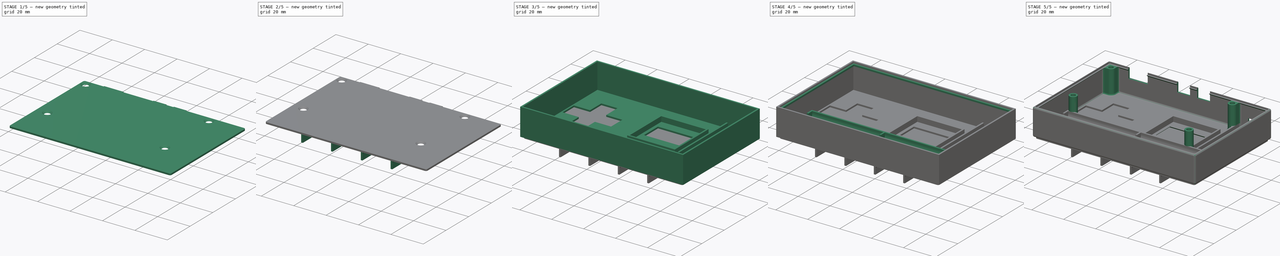
[diagram: build sequence overview — one tinted view per stage of 5, left to right]
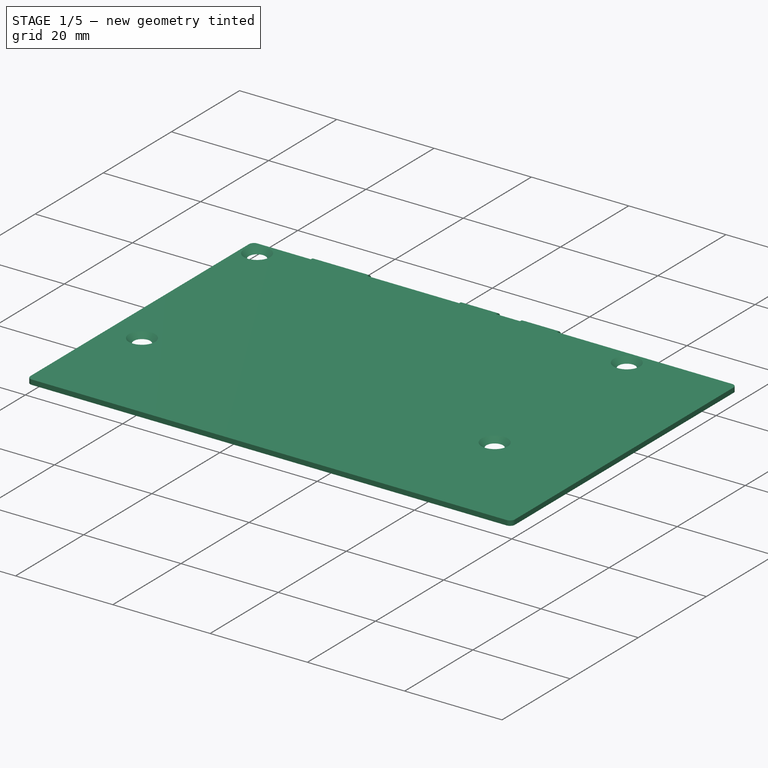
[diagram: stage 1 of 5 — iso view after this stage's code; geometry added in this stage tinted green]
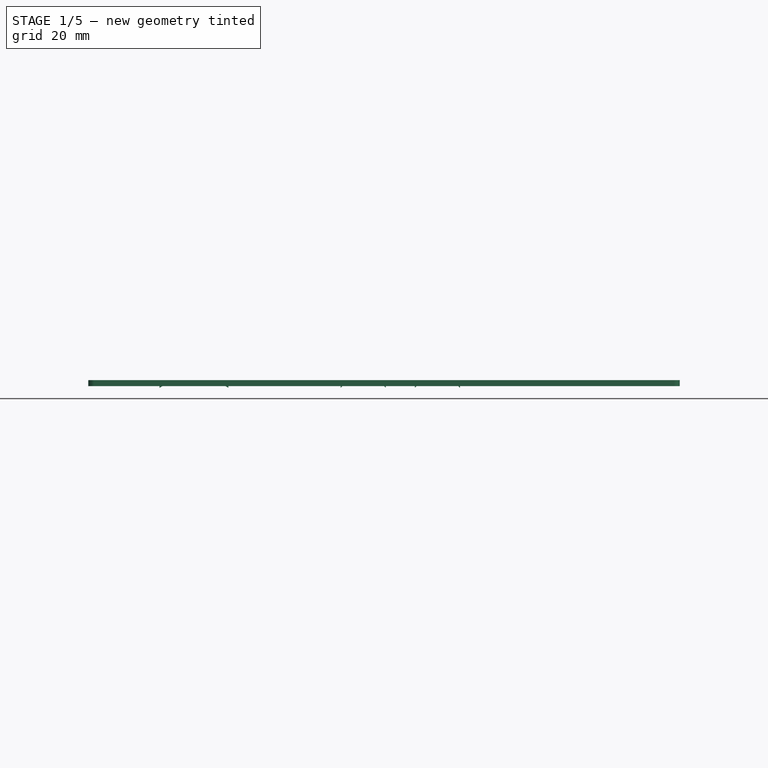
[diagram: stage 1 of 5 — front view after this stage's code; geometry added in this stage tinted green]
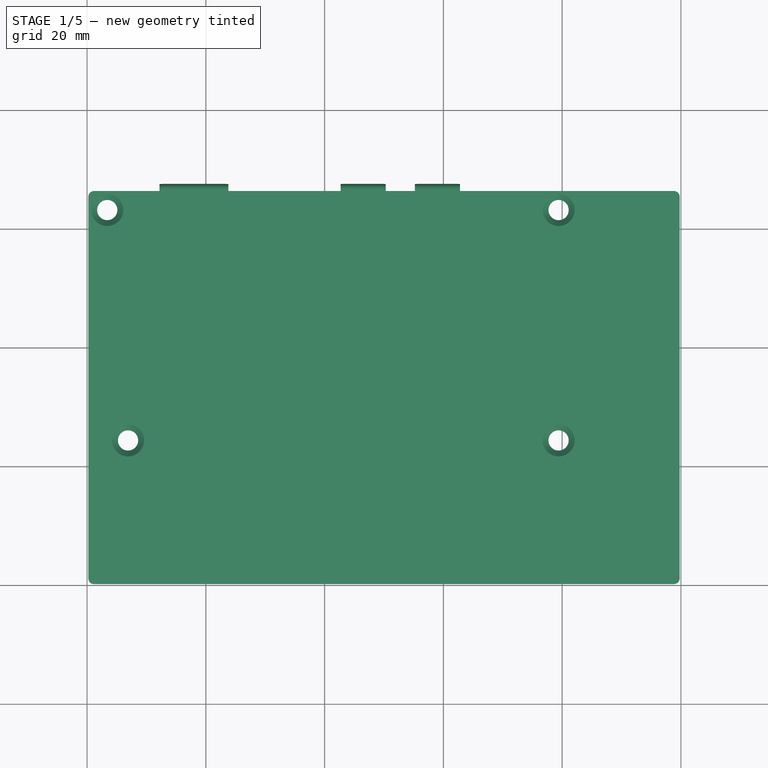
[diagram: stage 1 of 5 — top view after this stage's code; geometry added in this stage tinted green]
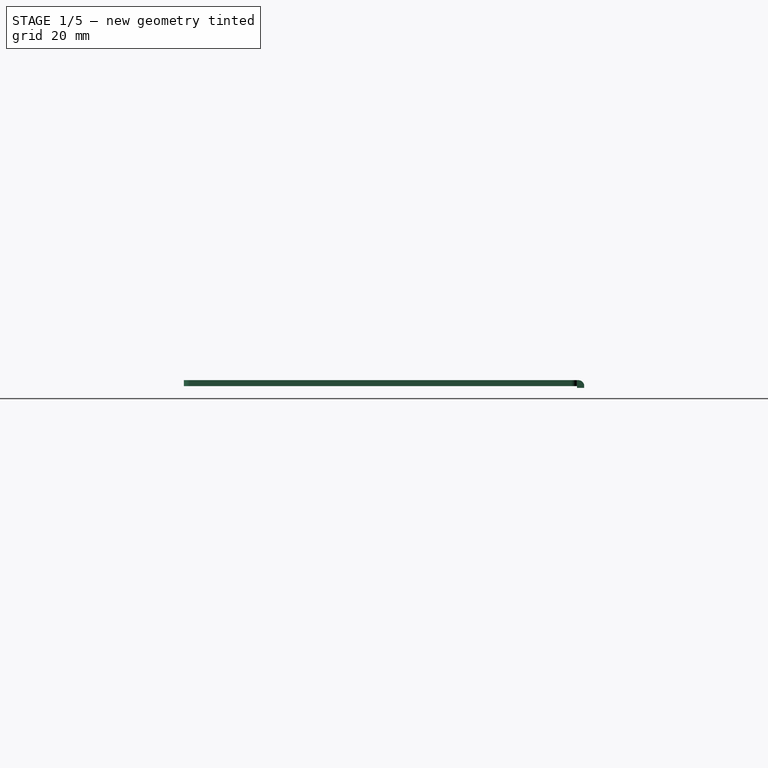
[diagram: stage 1 of 5 — right view after this stage's code; geometry added in this stage tinted green]
FCSTD DOCUMENT  (FreeCAD 0.17R13544 (Git))
Label: case_2
License: All rights reserved
LicenseURL: http://en.wikipedia.org/wiki/All_rights_reserved
objects: Sketcher::SketchObject×15, PartDesign::Pad×10, PartDesign::Fillet×4, PartDesign::Pocket×3, Spreadsheet::Sheet×2, PartDesign::Plane×2, PartDesign::Body×2, PartDesign::LinearPattern×1, PartDesign::Hole×1, PartDesign::Chamfer×1
note: 53 computed .brp shape members not serialized (recipe doc carries the construction recipe); baked Part::Feature solids carry a one-line shape summary decoded from their .brp

FEATURE [Sketcher::SketchObject] Sketch006
  MapMode = 5
  Placement = pos=(0,66.6,0) rot=(1,0,0;1.5708rad)
  Support = -> [Pocket]
  expr: Constraints[35] = c.ard_depth - v.tol
  expr: Constraints[34] = (c.ard_width + v.tol * 2 - 8) / 2
  expr: Constraints[33] = v.width
  expr: Constraints[32] = v.depth
  expr: Constraints[31] = v.wt
  sketch-geometry (24):
    g0: LineSegment StartX=86.9 StartY=8.2 StartZ=0 EndX=94.9 EndY=8.2 EndZ=0
    g1: LineSegment StartX=94.9 StartY=8.2 StartZ=0 EndX=94.9 EndY=5 EndZ=0
    g2: LineSegment StartX=94.9 StartY=5 StartZ=0 EndX=94.5 EndY=5 EndZ=0
    g3: LineSegment StartX=94.5 StartY=5 StartZ=0 EndX=94.5 EndY=4 EndZ=0
    g4: LineSegment StartX=94.5 StartY=4 StartZ=0 EndX=87.3 EndY=4 EndZ=0
    g5: LineSegment StartX=87.3 StartY=4 StartZ=0 EndX=87.3 EndY=5 EndZ=0
    g6: LineSegment StartX=87.3 StartY=5 StartZ=0 EndX=86.9 EndY=5 EndZ=0
    g7: LineSegment StartX=86.9 StartY=5 StartZ=0 EndX=86.9 EndY=8.2 EndZ=0
    g8: LineSegment [constr] StartX=0 StartY=1 StartZ=0 EndX=100 EndY=1 EndZ=0
    g9: LineSegment [constr] StartX=100 StartY=1 StartZ=0 EndX=100 EndY=17 EndZ=0
    g10: LineSegment [constr] StartX=100 StartY=17 StartZ=0 EndX=0 EndY=17 EndZ=0
    g11: LineSegment [constr] StartX=0 StartY=17 StartZ=0 EndX=0 EndY=1 EndZ=0
    g12: LineSegment StartX=12 StartY=17 StartZ=0 EndX=12 EndY=10.5 EndZ=0
    g13: LineSegment StartX=12 StartY=10.5 StartZ=0 EndX=24 EndY=10.5 EndZ=0
    g14: LineSegment StartX=24 StartY=10.5 StartZ=0 EndX=24 EndY=17 EndZ=0
    g15: LineSegment StartX=24 StartY=17 StartZ=0 EndX=12 EndY=17 EndZ=0
    g16: LineSegment StartX=42.5 StartY=17 StartZ=0 EndX=50.5 EndY=17 EndZ=0
    g17: LineSegment StartX=50.5 StartY=17 StartZ=0 EndX=50.5 EndY=11 EndZ=0
    g18: LineSegment StartX=50.5 StartY=11 StartZ=0 EndX=42.5 EndY=11 EndZ=0
    g19: LineSegment StartX=42.5 StartY=11 StartZ=0 EndX=42.5 EndY=17 EndZ=0
    g20: LineSegment StartX=55 StartY=17 StartZ=0 EndX=63 EndY=17 EndZ=0
    g21: LineSegment StartX=63 StartY=17 StartZ=0 EndX=63 EndY=11 EndZ=0
    g22: LineSegment StartX=63 StartY=11 StartZ=0 EndX=55 EndY=11 EndZ=0
    g23: LineSegment StartX=55 StartY=11 StartZ=0 EndX=55 EndY=17 EndZ=0
  constraints (72):
    c: Horizontal(g0)
    c: Coincident(g0,g1)
    c: Vertical(g1)
    c: Coincident(g1,g2)
    c: Horizontal(g2)
    c: Coincident(g2,g3)
    c: Vertical(g3)
    c: Coincident(g3,g4)
    c: Horizontal(g4)
    c: Coincident(g4,g5)
    c: Vertical(g5)
    c: Coincident(g5,g6)
    c: Horizontal(g6)
    c: Coincident(g6,g7)
    c: Coincident(g7,g0)
    c: Vertical(g7)
    c: Equal(g5,g3)
    c: Equal(g6,g2)
    c: DistanceX(g2,g2) = 0.4
    c: DistanceY(g4,g0) = 4.2
    c: DistanceY(g5,g5) = 1
    c: DistanceX(g0,g0) = 8
    c: Coincident(g8,g9)
    c: Coincident(g9,g10)
    c: Coincident(g10,g11)
    c: Coincident(g11,g8)
    c: Horizontal(g8)
    c: Horizontal(g10)
    c: Vertical(g9)
    c: Vertical(g11)
    c: PointOnObject(g8,g-2)
    c: DistanceY(g-1,g8) = 1
    c: DistanceY(g11,g11) = 16
    c: DistanceX(g8,g8) = 100
    c: Distance(g0,g9) = 5.1
    c: Distance(g3,g8) = 3
    c: Vertical(g12)
    c: Coincident(g12,g13)
    c: Horizontal(g13)
    c: Coincident(g13,g14)
    c: Vertical(g14)
    c: Horizontal(g15)
    c: DistanceX(g13,g13) = 12
    c: Distance(g12,g11) = 12
    c: Coincident(g15,g12)
    c: Coincident(g15,g14)
    c: DistanceY(g12,g12) = 6.5
    c: PointOnObject(g12,g10)
    c: Coincident(g16,g17)
    c: Coincident(g17,g18)
    c: Coincident(g18,g19)
    c: Coincident(g19,g16)
    c: Horizontal(g16)
    c: Horizontal(g18)
    c: Vertical(g17)
    c: Vertical(g19)
    c: PointOnObject(g16,g10)
    c: Coincident(g20,g21)
    c: Coincident(g21,g22)
    c: Coincident(g22,g23)
    c: Coincident(g23,g20)
    c: Horizontal(g20)
    c: Horizontal(g22)
    c: Vertical(g21)
    c: Vertical(g23)
    c: PointOnObject(g20,g10)
    c: Equal(g16,g20)
    c: Equal(g19,g23)
    c: DistanceX(g14,g16) = 18.5
    c: DistanceX(g16,g20) = 4.5
    c: DistanceX(g18,g18) = 8
    c: DistanceY(g21,g21) = 6
FEATURE [Sketcher::SketchObject] Sketch007
  MapMode = 5
  Placement = pos=(0,0,1) rot=(0,0,1;0rad)
  Support = -> [Pocket]
  expr: Constraints[18] = c.ard_width + v.tol * 2
  expr: Constraints[13] = v.width
  expr: Constraints[28] = c.scr_width + c.b_t_diam + 2 * v.wt + 2 * v.tol
  expr: Constraints[23] = c.ard_height + v.tol * 2 + v.wt
  expr: Constraints[40] = (v.width - c.bat_length * 2 - v.wt * 3) / 2
  expr: Constraints[37] = c.b_t_diam / 2 + v.wt * 2
  expr: Constraints[2] = c.b_t_diam / 2
  expr: Constraints[14] = v.height
  expr: Constraints[3] = c.b_t_diam / 2 + v.wt
  sketch-geometry (23):
    g0: Circle CenterX=79.4 CenterY=24.4 CenterZ=0 NormalX=0 NormalY=0 NormalZ=1 AngleXU=0 Radius=1.4
    g1: ArcOfCircle CenterX=79.4 CenterY=63.2 CenterZ=0 NormalX=0 NormalY=0 NormalZ=1 AngleXU=0 Radius=2.4 StartAngle=3.14159 EndAngle=6.28319
    g2: Circle CenterX=79.4 CenterY=63.2 CenterZ=0 NormalX=0 NormalY=0 NormalZ=1 AngleXU=0 Radius=1.4
    g3: LineSegment [constr] StartX=0 StartY=0 StartZ=0 EndX=100 EndY=0 EndZ=0
    g4: LineSegment [constr] StartX=100 StartY=0 StartZ=0 EndX=100 EndY=66.6 EndZ=0
    g5: LineSegment [constr] StartX=100 StartY=66.6 StartZ=0 EndX=0 EndY=66.6 EndZ=0
    g6: LineSegment [constr] StartX=0 StartY=66.6 StartZ=0 EndX=0 EndY=0 EndZ=0
    g7: LineSegment [constr] StartX=81.8 StartY=66.6 StartZ=0 EndX=81.8 EndY=0 EndZ=0
    g8: LineSegment [constr] StartX=0 StartY=22 StartZ=0 EndX=100 EndY=22 EndZ=0
    g9: Circle CenterX=6.9 CenterY=24.4 CenterZ=0 NormalX=0 NormalY=0 NormalZ=1 AngleXU=0 Radius=1.4
    g10: LineSegment [constr] StartX=49.1 StartY=66.6 StartZ=0 EndX=49.1 EndY=0 EndZ=0
    g11: LineSegment StartX=77 StartY=63.2 StartZ=0 EndX=77 EndY=66.6 EndZ=0
    g12: LineSegment StartX=77 StartY=66.6 StartZ=0 EndX=81.8 EndY=66.6 EndZ=0
    g13: LineSegment StartX=81.8 StartY=66.6 StartZ=0 EndX=81.8 EndY=63.2 EndZ=0
    g14: LineSegment [constr] StartX=4.5 StartY=66.6 StartZ=0 EndX=4.5 EndY=0 EndZ=0
    g15: Circle CenterX=3.4 CenterY=63.2 CenterZ=0 NormalX=0 NormalY=0 NormalZ=1 AngleXU=0 Radius=1.4
    g16: ArcOfCircle CenterX=3.4 CenterY=63.2 CenterZ=0 NormalX=0 NormalY=0 NormalZ=1 AngleXU=0 Radius=2.4 StartAngle=4.71239 EndAngle=6.28319
    g17: LineSegment StartX=3.4 StartY=60.8 StartZ=0 EndX=0 EndY=60.8 EndZ=0
    g18: LineSegment StartX=0 StartY=60.8 StartZ=0 EndX=0 EndY=66.6 EndZ=0
    g19: LineSegment StartX=5.8 StartY=66.6 StartZ=0 EndX=5.8 EndY=63.2 EndZ=0
    g20: LineSegment StartX=0 StartY=66.6 StartZ=0 EndX=5.8 EndY=66.6 EndZ=0
    g21: Circle CenterX=6.9 CenterY=24.4 CenterZ=0 NormalX=0 NormalY=0 NormalZ=1 AngleXU=0 Radius=2.4
    g22: Circle CenterX=79.4 CenterY=24.4 CenterZ=0 NormalX=0 NormalY=0 NormalZ=1 AngleXU=0 Radius=2.4
  constraints (65):
    c: Coincident(g2,g1)
    c: Equal(g2,g0)
    c: Radius(g2) = 1.4
    c: Radius(g1) = 2.4
    c: Coincident(g3,g4)
    c: Coincident(g4,g5)
    c: Coincident(g5,g6)
    c: Coincident(g6,g3)
    c: Horizontal(g3)
    c: Horizontal(g5)
    c: Vertical(g4)
    c: Vertical(g6)
    c: Coincident(g3,g-1)
    c: DistanceX(g3,g3) = 100
    c: DistanceY(g6,g6) = 66.6
    c: PointOnObject(g7,g5)
    c: PointOnObject(g7,g3)
    c: Vertical(g7)
    c: DistanceX(g7,g4) = 18.2
    c: Tangent(g1,g7)
    c: PointOnObject(g8,g6)
    c: PointOnObject(g8,g4)
    c: Horizontal(g8)
    c: DistanceY(g8,g4) = 44.6
    c: Equal(g9,g0)
    c: PointOnObject(g10,g5)
    c: PointOnObject(g10,g3)
    c: Vertical(g10)
    c: DistanceX(g10,g7) = 32.7
    c: PointOnObject(g1,g7)
    c: Tangent(g1,g11) = 1.5708
    c: Coincident(g11,g12)
    c: Coincident(g12,g7)
    c: Horizontal(g12)
    c: Coincident(g12,g13)
    c: Coincident(g13,g1)
    c: Vertical(g11)
    c: DistanceY(g13,g13) = 3.4
    c: PointOnObject(g14,g3)
    c: Vertical(g14)
    c: DistanceX(g5,g14) = 4.5
    c: Equal(g15,g9)
    c: Coincident(g16,g15)
    c: Tangent(g16,g17) = 1.5708
    c: Coincident(g17,g18)
    c: Coincident(g18,g5)
    c: Vertical(g19)
    c: Horizontal(g17)
    c: Tangent(g19,g16) = 1.5708
    c: PointOnObject(g14,g5)
    c: Coincident(g20,g5)
    c: Coincident(g20,g19)
    c: Horizontal(g20)
    c: Vertical(g18)
    c: Equal(g17,g19)
    c: Equal(g19,g11)
    c: Coincident(g21,g9)
    c: Coincident(g22,g0)
    c: Equal(g22,g1)
    c: Equal(g22,g21)
    c: Tangent(g21,g14)
    c: Tangent(g21,g8)
    c: Tangent(g22,g8)
    c: Tangent(g22,g7)
    c: Equal(g16,g1)
FEATURE [Sketcher::SketchObject] Sketch008
  MapMode = 5
  Support = -> [XY_Plane001]
  expr: Constraints[17] = v.wt
  expr: Constraints[9] = v.height + 2 * v.wt
  expr: Constraints[8] = v.width + 2 * v.wt
  sketch-geometry (6):
    g0: LineSegment StartX=-1 StartY=-1 StartZ=0 EndX=101 EndY=-1 EndZ=0
    g1: LineSegment StartX=101 StartY=-1 StartZ=0 EndX=101 EndY=67.6 EndZ=0
    g2: LineSegment StartX=101 StartY=67.6 StartZ=0 EndX=-1 EndY=67.6 EndZ=0
    g3: LineSegment StartX=-1 StartY=67.6 StartZ=0 EndX=-1 EndY=-1 EndZ=0
    g4: LineSegment [constr] StartX=0 StartY=-1 StartZ=0 EndX=0 EndY=0 EndZ=0
    g5: LineSegment [constr] StartX=0 StartY=0 StartZ=0 EndX=-1 EndY=0 EndZ=0
  constraints (18):
    c: Coincident(g0,g1)
    c: Coincident(g1,g2)
    c: Coincident(g2,g3)
    c: Coincident(g3,g0)
    c: Horizontal(g0)
    c: Horizontal(g2)
    c: Vertical(g1)
    c: Vertical(g3)
    c: DistanceX(g0,g0) = 102
    c: DistanceY(g3,g3) = 68.6
    c: PointOnObject(g4,g0)
    c: Coincident(g4,g-1)
    c: Coincident(g4,g5)
    c: PointOnObject(g5,g3)
    c: Horizontal(g5)
    c: Vertical(g4)
    c: Equal(g5,g4)
    c: DistanceX(g5,g5) = 1
FEATURE [Sketcher::SketchObject] Sketch009
  MapMode = 5
  Support = -> [XY_Plane001]
  expr: Constraints[17] = v.tol
  expr: Constraints[9] = v.height - 2 * v.tol
  expr: Constraints[8] = v.width - v.tol * 2
  sketch-geometry (6):
    g0: LineSegment StartX=0.2 StartY=0.2 StartZ=0 EndX=99.8 EndY=0.2 EndZ=0
    g1: LineSegment StartX=99.8 StartY=0.2 StartZ=0 EndX=99.8 EndY=66.4 EndZ=0
    g2: LineSegment StartX=99.8 StartY=66.4 StartZ=0 EndX=0.2 EndY=66.4 EndZ=0
    g3: LineSegment StartX=0.2 StartY=66.4 StartZ=0 EndX=0.2 EndY=0.2 EndZ=0
    g4: LineSegment [constr] StartX=0.2 StartY=0 StartZ=0 EndX=0.2 EndY=0.2 EndZ=0
    g5: LineSegment [constr] StartX=0.2 StartY=0.2 StartZ=0 EndX=0 EndY=0.2 EndZ=0
  constraints (18):
    c: Coincident(g0,g1)
    c: Coincident(g1,g2)
    c: Coincident(g2,g3)
    c: Coincident(g3,g0)
    c: Horizontal(g0)
    c: Horizontal(g2)
    c: Vertical(g1)
    c: Vertical(g3)
    c: DistanceX(g0,g0) = 99.6
    c: DistanceY(g3,g3) = 66.2
    c: PointOnObject(g4,g-1)
    c: Coincident(g4,g0)
    c: Vertical(g4)
    c: Coincident(g5,g0)
    c: PointOnObject(g5,g-2)
    c: Horizontal(g5)
    c: Equal(g4,g5)
    c: DistanceX(g5,g5) = 0.2
FEATURE [PartDesign::Pad] Pad006
  Length = 1
  Length2 = 100
  Profile = -> Sketch009
  Reversed = true
  Type = 0
  expr: Length = v.wt
FEATURE [Sketcher::SketchObject] Sketch010
  MapMode = 5
  Support = -> [Pad006]
  expr: Constraints[28] = v.wt * 2 + c.b_t_diam / 2
  expr: Constraints[21] = c.b_l_diam / 2
  expr: Constraints[20] = c.b_t_diam / 2 + v.wt * 2
  expr: Constraints[23] = (v.width - c.bat_length * 2 - v.wt * 3) / 2 + c.b_t_diam / 2 + v.wt
  expr: Constraints[19] = c.ard_width + 2 * v.tol + v.wt + c.b_t_diam / 2
  expr: Constraints[18] = v.height
  expr: Constraints[22] = c.bat_diam * 2 + v.wt + c.b_t_diam / 2
  expr: Constraints[17] = v.width
  sketch-geometry (11):
    g0: Circle CenterX=79.4 CenterY=63.2 CenterZ=0 NormalX=0 NormalY=0 NormalZ=1 AngleXU=0 Radius=1.7
    g1: Circle CenterX=79.4 CenterY=24.4 CenterZ=0 NormalX=0 NormalY=0 NormalZ=1 AngleXU=0 Radius=1.7
    g2: Circle CenterX=6.9 CenterY=24.4 CenterZ=0 NormalX=0 NormalY=0 NormalZ=1 AngleXU=0 Radius=1.7
    g3: LineSegment [constr] StartX=79.4 StartY=63.2 StartZ=0 EndX=79.4 EndY=24.4 EndZ=0
    g4: LineSegment [constr] StartX=79.4 StartY=24.4 StartZ=0 EndX=6.9 EndY=24.4 EndZ=0
    g5: LineSegment [constr] StartX=0 StartY=0 StartZ=0 EndX=100 EndY=0 EndZ=0
    g6: LineSegment [constr] StartX=100 StartY=0 StartZ=0 EndX=100 EndY=66.6 EndZ=0
    g7: LineSegment [constr] StartX=100 StartY=66.6 StartZ=0 EndX=0 EndY=66.6 EndZ=0
    g8: LineSegment [constr] StartX=0 StartY=66.6 StartZ=0 EndX=0 EndY=0 EndZ=0
    g9: Circle CenterX=3.4 CenterY=63.2 CenterZ=0 NormalX=0 NormalY=0 NormalZ=1 AngleXU=0 Radius=1.7
    g10: LineSegment [constr] StartX=3.4 StartY=63.2 StartZ=0 EndX=79.4 EndY=63.2 EndZ=0
  constraints (29):
    c: Equal(g2,g1)
    c: Equal(g1,g0)
    c: Coincident(g3,g0)
    c: Coincident(g3,g1)
    c: Vertical(g3)
    c: Coincident(g3,g4)
    c: Coincident(g4,g2)
    c: Horizontal(g4)
    c: Coincident(g5,g6)
    c: Coincident(g6,g7)
    c: Coincident(g7,g8)
    c: Coincident(g8,g5)
    c: Horizontal(g5)
    c: Horizontal(g7)
    c: Vertical(g6)
    c: Vertical(g8)
    c: Coincident(g5,g-1)
    c: DistanceX(g5,g5) = 100
    c: DistanceY(g8,g8) = 66.6
    c: DistanceX(g0,g6) = 20.6
    c: DistanceY(g0,g6) = 3.4
    c: Radius(g0) = 1.7
    c: DistanceY(g5,g1) = 24.4
    c: Distance(g2,g8) = 6.9
    c: Equal(g9,g2)
    c: Coincident(g10,g9)
    c: Coincident(g10,g0)
    c: Horizontal(g10)
    c: Distance(g9,g8) = 3.4
FEATURE [PartDesign::Hole] Hole
  BaseFeature = -> Pad006
  Depth = 25
  DepthType = 1
  Diameter = 3.4
  DrillPoint = 1
  DrillPointAngle = 118
  HoleCutCountersinkAngle = 90
  HoleCutDepth = 0
  HoleCutDiameter = 5.4
  HoleCutType = 2
  ModelActualThread = false
  Profile = -> Sketch010
  Tapered = false
  TaperedAngle = 90
  ThreadAngle = 0
  ThreadClass = 0
  ThreadCutOffInner = 0
  ThreadCutOffOuter = 0
  ThreadDirection = 0
  ThreadFit = 0
  ThreadPitch = 0
  ThreadSize = 0
  ThreadType = 0
  Threaded = false
  expr: Diameter = c.b_l_diam
FEATURE [Sketcher::SketchObject] Sketch011
  MapMode = 5
  Placement = pos=(0,66.4,0) rot=(0,0.707107,0.707107;3.14159rad)
  Support = -> [Hole]
  expr: Constraints[13] = 0.80000000000000004
  sketch-geometry (18):
    g0: LineSegment StartX=-23.8 StartY=0 StartZ=0 EndX=-23.8 EndY=-1.3 EndZ=0
    g1: LineSegment StartX=-23.8 StartY=-1.3 StartZ=0 EndX=-23 EndY=-0.8 EndZ=0
    g2: LineSegment StartX=-23 StartY=-0.8 StartZ=0 EndX=-13 EndY=-0.8 EndZ=0
    g3: LineSegment StartX=-13 StartY=-0.8 StartZ=0 EndX=-12.2 EndY=-1.3 EndZ=0
    g4: LineSegment StartX=-12.2 StartY=-1.3 StartZ=0 EndX=-12.2 EndY=0 EndZ=0
    g5: LineSegment StartX=-12.2 StartY=0 StartZ=0 EndX=-23.8 EndY=0 EndZ=0
    g6: LineSegment StartX=-42.7 StartY=-1.3 StartZ=0 EndX=-42.7 EndY=0 EndZ=0
    g7: LineSegment StartX=-42.7 StartY=0 StartZ=0 EndX=-50.3 EndY=0 EndZ=0
    g8: LineSegment StartX=-50.3 StartY=0 StartZ=0 EndX=-50.3 EndY=-1.3 EndZ=0
    g9: LineSegment StartX=-50.3 StartY=-1.3 StartZ=0 EndX=-49.8 EndY=-0.8 EndZ=0
    g10: LineSegment StartX=-49.8 StartY=-0.8 StartZ=0 EndX=-43.2 EndY=-0.8 EndZ=0
    g11: LineSegment StartX=-43.2 StartY=-0.8 StartZ=0 EndX=-42.7 EndY=-1.3 EndZ=0
    g12: LineSegment StartX=-55.2 StartY=-1.3 StartZ=0 EndX=-55.2 EndY=0 EndZ=0
    g13: LineSegment StartX=-55.2 StartY=0 StartZ=0 EndX=-62.8 EndY=0 EndZ=0
    g14: LineSegment StartX=-62.8 StartY=0 StartZ=0 EndX=-62.8 EndY=-1.3 EndZ=0
    g15: LineSegment StartX=-62.8 StartY=-1.3 StartZ=0 EndX=-62.3 EndY=-0.8 EndZ=0
    g16: LineSegment StartX=-62.3 StartY=-0.8 StartZ=0 EndX=-55.7 EndY=-0.8 EndZ=0
    g17: LineSegment StartX=-55.7 StartY=-0.8 StartZ=0 EndX=-55.2 EndY=-1.3 EndZ=0
  constraints (54):
    c: PointOnObject(g0,g-1)
    c: Vertical(g0)
    c: Coincident(g0,g1)
    c: Coincident(g1,g2)
    c: Horizontal(g2)
    c: Coincident(g2,g3)
    c: Coincident(g3,g4)
    c: Coincident(g4,g5)
    c: Coincident(g5,g0)
    c: Horizontal(g5)
    c: Vertical(g4)
    c: DistanceX(g4,g-1) = 12.2
    c: DistanceX(g5,g5) = 11.6
    c: DistanceY(g2,g4) = 0.8
    c: DistanceY(g3,g3) = 0.5
    c: Equal(g1,g3)
    c: Equal(g0,g4)
    c: DistanceX(g3,g3) = 0.8
    c: PointOnObject(g6,g-1)
    c: Vertical(g6)
    c: Coincident(g6,g7)
    c: Horizontal(g7)
    c: Coincident(g7,g8)
    c: Vertical(g8)
    c: Coincident(g8,g9)
    c: Coincident(g9,g10)
    c: Horizontal(g10)
    c: Coincident(g10,g11)
    c: Coincident(g11,g6)
    c: Equal(g8,g6)
    c: Equal(g11,g9)
    c: DistanceY(g10,g6) = 0.8
    c: DistanceY(g11,g11) = 0.5
    c: DistanceX(g11,g11) = 0.5
    c: DistanceX(g6,g0) = 18.9
    c: DistanceX(g7,g7) = 7.6
    c: PointOnObject(g12,g-1)
    c: Vertical(g12)
    c: Coincident(g12,g13)
    c: Horizontal(g13)
    c: Coincident(g13,g14)
    c: Vertical(g14)
    c: Coincident(g14,g15)
    c: Coincident(g15,g16)
    c: Horizontal(g16)
    c: Coincident(g16,g17)
    c: Coincident(g17,g12)
    c: Equal(g12,g14)
    c: Equal(g15,g17)
    c: Equal(g13,g7)
    c: Equal(g17,g9)
    c: Equal(g12,g8)
    c: Equal(g16,g10)
    c: DistanceX(g12,g7) = 4.9
FEATURE [PartDesign::Pad] Pad007
  BaseFeature = -> Hole
  Length = 1.2
  Length2 = 100
  Profile = -> Sketch011
  Type = 0
  expr: Length = v.wt + v.tol
FEATURE [PartDesign::Fillet] Fillet004
  Base = -> Pad007 [Edge1,Edge2,Edge8,Edge5,Edge53,Edge48,Edge43]
  BaseFeature = -> Pad007
  Radius = 1
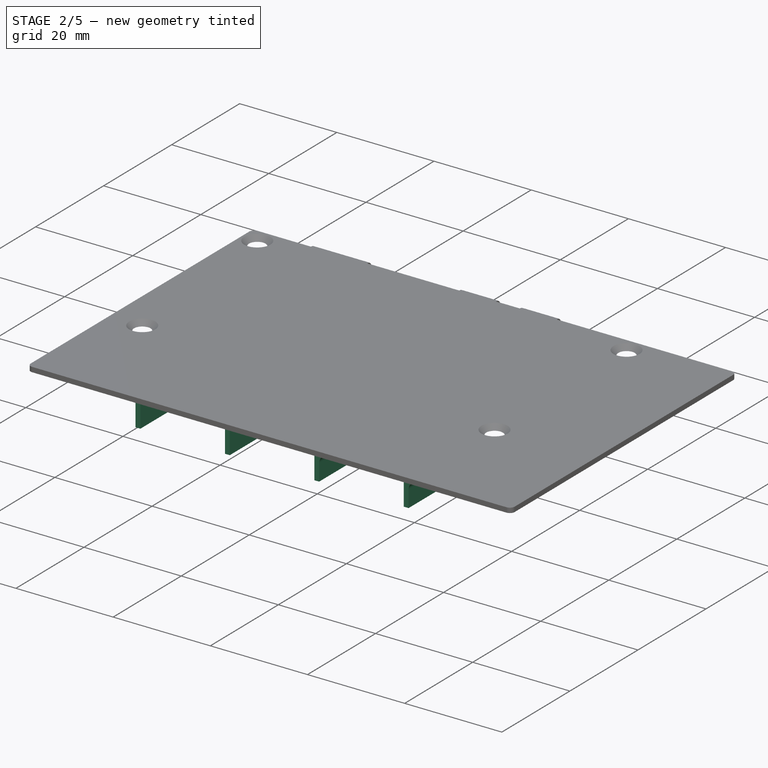
[diagram: stage 2 of 5 — iso view after this stage's code; geometry added in this stage tinted green]
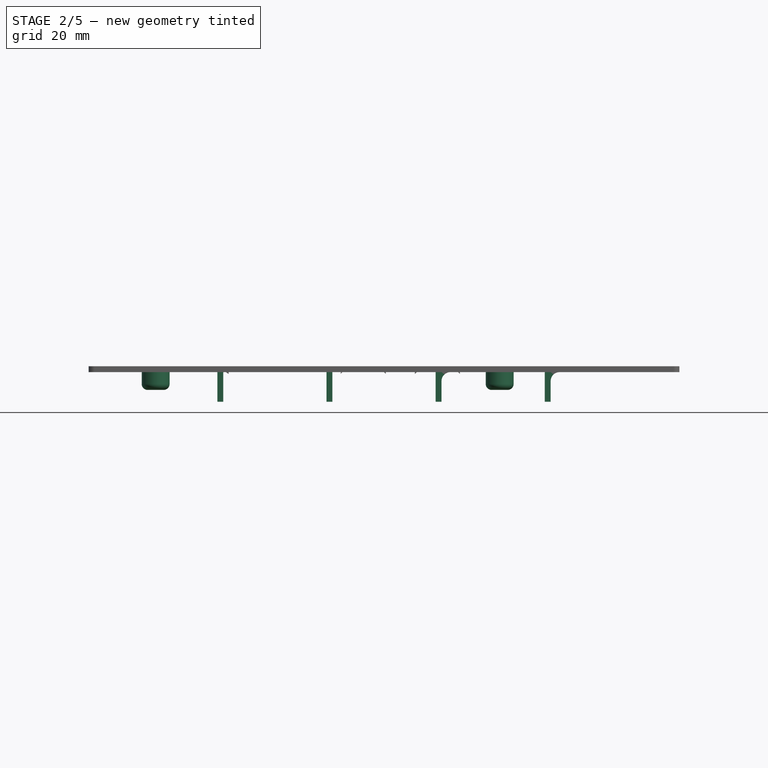
[diagram: stage 2 of 5 — front view after this stage's code; geometry added in this stage tinted green]
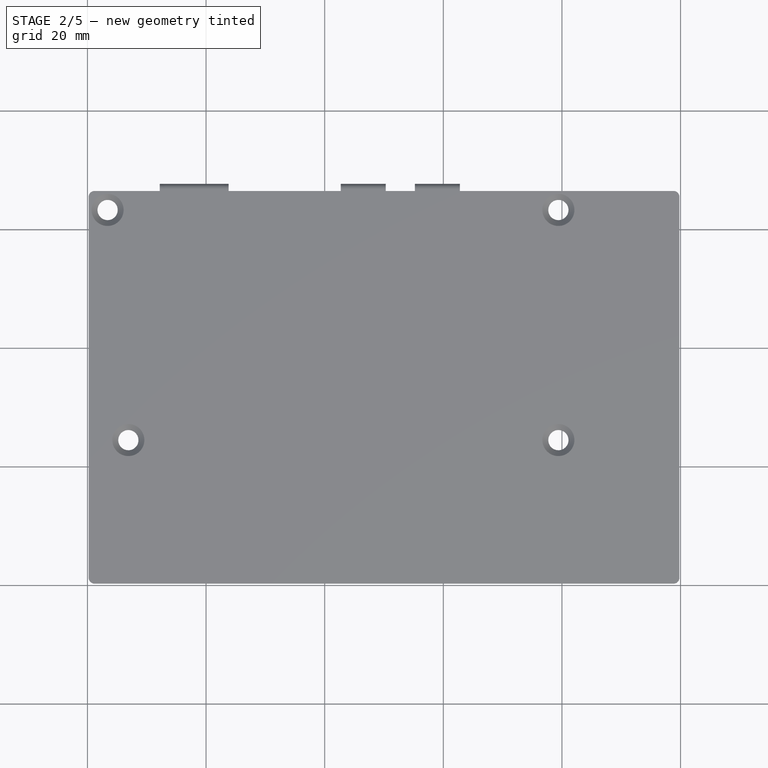
[diagram: stage 2 of 5 — top view after this stage's code; geometry added in this stage tinted green]
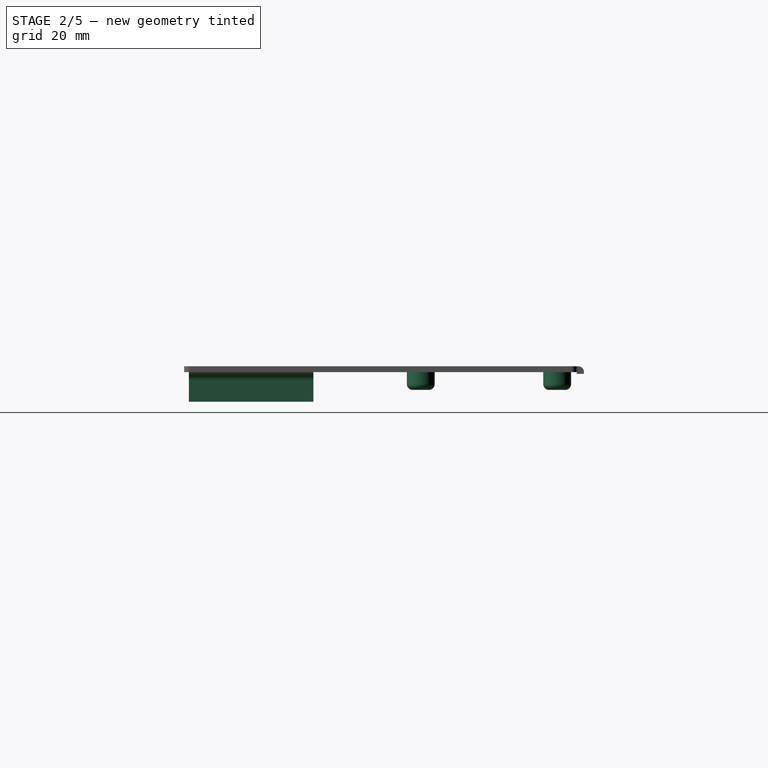
[diagram: stage 2 of 5 — right view after this stage's code; geometry added in this stage tinted green]
FEATURE [PartDesign::Body] Body  label="case_base"
  Group = -> [Sketch,Pad,Sketch001,Pocket,Sketch002,Pad001,Sketch003,Pocket001,DatumPlane,Sketch004,Pad002,Sketch005,Pad003,LinearPattern,Pad008,Sketch006,Sketch007,Pad004,Pocket002,DatumPlane001,Sketch012,Fillet,Chamfer]
  Origin = -> Origin
  Tip = -> Chamfer
FEATURE [Sketcher::SketchObject] Sketch013
  MapMode = 5
  Placement = pos=(0,0,-1) rot=(1,0,0;3.14159rad)
  Support = -> [Pad006]
  expr: Constraints[28] = v.height
  expr: Constraints[27] = v.width
  sketch-geometry (15):
    g0: LineSegment [constr] StartX=69.5 StartY=-40.1 StartZ=0 EndX=11.5 EndY=-40.1 EndZ=0
    g1: LineSegment [constr] StartX=11.5 StartY=-40.1 StartZ=0 EndX=11.5 EndY=-63.1 EndZ=0
    g2: LineSegment [constr] StartX=11.5 StartY=-63.1 StartZ=0 EndX=69.5 EndY=-63.1 EndZ=0
    g3: LineSegment [constr] StartX=69.5 StartY=-63.1 StartZ=0 EndX=69.5 EndY=-40.1 EndZ=0
    g4: Circle CenterX=11.5 CenterY=-40.1 CenterZ=0 NormalX=0 NormalY=0 NormalZ=1 AngleXU=0 Radius=2.35
    g5: Circle CenterX=69.5 CenterY=-40.1 CenterZ=0 NormalX=0 NormalY=0 NormalZ=1 AngleXU=0 Radius=2.35
    g6: Circle CenterX=11.5 CenterY=-63.1 CenterZ=0 NormalX=0 NormalY=0 NormalZ=1 AngleXU=0 Radius=2.35
    g7: Circle CenterX=69.5 CenterY=-63.1 CenterZ=0 NormalX=0 NormalY=0 NormalZ=1 AngleXU=0 Radius=2.35
    g8: LineSegment [constr] StartX=0 StartY=0 StartZ=0 EndX=100 EndY=0 EndZ=0
    g9: LineSegment [constr] StartX=100 StartY=0 StartZ=0 EndX=100 EndY=-66.6 EndZ=0
    g10: LineSegment [constr] StartX=100 StartY=-66.6 StartZ=0 EndX=0 EndY=-66.6 EndZ=0
    g11: LineSegment [constr] StartX=0 StartY=-66.6 StartZ=0 EndX=0 EndY=0 EndZ=0
    g12: LineSegment [constr] StartX=8 StartY=-66.6 StartZ=0 EndX=8 EndY=0 EndZ=0
    g13: LineSegment [constr] StartX=11.5 StartY=-63.1 StartZ=0 EndX=8 EndY=-63.1 EndZ=0
    g14: LineSegment [constr] StartX=11.5 StartY=-63.1 StartZ=0 EndX=11.5 EndY=-66.6 EndZ=0
  constraints (41):
    c: Coincident(g0,g1)
    c: Coincident(g1,g2)
    c: Coincident(g2,g3)
    c: Coincident(g3,g0)
    c: Horizontal(g0)
    c: Horizontal(g2)
    c: Vertical(g1)
    c: Vertical(g3)
    c: Coincident(g4,g0)
    c: Coincident(g5,g0)
    c: Coincident(g6,g1)
    c: Coincident(g7,g2)
    c: Equal(g4,g5)
    c: Equal(g6,g7)
    c: Equal(g4,g6)
    c: Radius(g4) = 2.35
    c: DistanceX(g0,g0) = 58
    c: DistanceY(g3,g3) = 23
    c: Coincident(g8,g9)
    c: Coincident(g9,g10)
    c: Coincident(g10,g11)
    c: Coincident(g11,g8)
    c: Horizontal(g8)
    c: Horizontal(g10)
    c: Vertical(g9)
    c: Vertical(g11)
    c: Coincident(g8,g-1)
    c: DistanceX(g8,g8) = 100
    c: DistanceY(g9,g9) = 66.6
    c: PointOnObject(g12,g10)
    c: PointOnObject(g12,g8)
    c: Vertical(g12)
    c: Coincident(g13,g1)
    c: PointOnObject(g13,g12)
    c: Horizontal(g13)
    c: Coincident(g14,g1)
    c: PointOnObject(g14,g10)
    c: Vertical(g14)
    c: Equal(g13,g14)
    c: DistanceX(g13,g13) = 3.5
    c: DistanceX(g10,g12) = 8
FEATURE [PartDesign::Pad] Pad009
  BaseFeature = -> Fillet004
  Length = 3
  Length2 = 100
  Profile = -> Sketch013
  Type = 0
FEATURE [PartDesign::Fillet] Fillet005
  Base = -> Pad009 [Edge114,Edge108,Edge112,Edge110]
  BaseFeature = -> Pad009
  Radius = 1
FEATURE [Sketcher::SketchObject] Sketch014
  MapMode = 5
  Placement = pos=(0,0,-1) rot=(1,0,0;3.14159rad)
  Support = -> [Fillet005]
  expr: Constraints[82] = v.wt
  expr: Constraints[81] = c.bat_diam * 2 - v.wt
  expr: Constraints[80] = c.bat_length * 2 + v.wt * 3
  expr: Constraints[72] = v.height
  expr: Constraints[71] = v.width
  sketch-geometry (30):
    g0: LineSegment StartX=21.9 StartY=-1 StartZ=0 EndX=22.9 EndY=-1 EndZ=0
    g1: LineSegment StartX=22.9 StartY=-1 StartZ=0 EndX=22.9 EndY=-22 EndZ=0
    g2: LineSegment StartX=22.9 StartY=-22 StartZ=0 EndX=21.9 EndY=-22 EndZ=0
    g3: LineSegment StartX=21.9 StartY=-22 StartZ=0 EndX=21.9 EndY=-1 EndZ=0
    g4: LineSegment StartX=40.3 StartY=-1 StartZ=0 EndX=41.3 EndY=-1 EndZ=0
    g5: LineSegment StartX=41.3 StartY=-1 StartZ=0 EndX=41.3 EndY=-22 EndZ=0
    g6: LineSegment StartX=41.3 StartY=-22 StartZ=0 EndX=40.3 EndY=-22 EndZ=0
    g7: LineSegment StartX=40.3 StartY=-22 StartZ=0 EndX=40.3 EndY=-1 EndZ=0
    g8: LineSegment StartX=58.7 StartY=-1 StartZ=0 EndX=59.7 EndY=-1 EndZ=0
    g9: LineSegment StartX=59.7 StartY=-1 StartZ=0 EndX=59.7 EndY=-22 EndZ=0
    g10: LineSegment StartX=59.7 StartY=-22 StartZ=0 EndX=58.7 EndY=-22 EndZ=0
    g11: LineSegment StartX=58.7 StartY=-22 StartZ=0 EndX=58.7 EndY=-1 EndZ=0
    g12: LineSegment StartX=77.1 StartY=-1 StartZ=0 EndX=78.1 EndY=-1 EndZ=0
    g13: LineSegment StartX=78.1 StartY=-1 StartZ=0 EndX=78.1 EndY=-22 EndZ=0
    g14: LineSegment StartX=78.1 StartY=-22 StartZ=0 EndX=77.1 EndY=-22 EndZ=0
    g15: LineSegment StartX=77.1 StartY=-22 StartZ=0 EndX=77.1 EndY=-1 EndZ=0
    g16: LineSegment [constr] StartX=4.5 StartY=-1 StartZ=0 EndX=95.5 EndY=-1 EndZ=0
    g17: LineSegment [constr] StartX=95.5 StartY=-1 StartZ=0 EndX=95.5 EndY=-22 EndZ=0
    g18: LineSegment [constr] StartX=4.5 StartY=-22 StartZ=0 EndX=4.5 EndY=-1 EndZ=0
    g19: LineSegment [constr] StartX=4.5 StartY=-22 StartZ=0 EndX=21.9 EndY=-22 EndZ=0
    g20: LineSegment [constr] StartX=22.9 StartY=-22 StartZ=0 EndX=40.3 EndY=-22 EndZ=0
    g21: LineSegment [constr] StartX=41.3 StartY=-22 StartZ=0 EndX=58.7 EndY=-22 EndZ=0
    g22: LineSegment [constr] StartX=59.7 StartY=-22 StartZ=0 EndX=77.1 EndY=-22 EndZ=0
    g23: LineSegment [constr] StartX=78.1 StartY=-22 StartZ=0 EndX=95.5 EndY=-22 EndZ=0
    g24: LineSegment [constr] StartX=0 StartY=0 StartZ=0 EndX=100 EndY=0 EndZ=0
    g25: LineSegment [constr] StartX=100 StartY=0 StartZ=0 EndX=100 EndY=-66.6 EndZ=0
    g26: LineSegment [constr] StartX=100 StartY=-66.6 StartZ=0 EndX=0 EndY=-66.6 EndZ=0
    g27: LineSegment [constr] StartX=0 StartY=-66.6 StartZ=0 EndX=0 EndY=0 EndZ=0
    g28: LineSegment [constr] StartX=4.5 StartY=-1 StartZ=0 EndX=0 EndY=-1 EndZ=0
    g29: LineSegment [constr] StartX=95.5 StartY=-1 StartZ=0 EndX=100 EndY=-1 EndZ=0
  constraints (85):
    c: Coincident(g0,g1)
    c: Coincident(g1,g2)
    c: Coincident(g2,g3)
    c: Coincident(g3,g0)
    c: Horizontal(g0)
    c: Horizontal(g2)
    c: Vertical(g1)
    c: Vertical(g3)
    c: Coincident(g4,g5)
    c: Coincident(g5,g6)
    c: Coincident(g6,g7)
    c: Coincident(g7,g4)
    c: Horizontal(g4)
    c: Horizontal(g6)
    c: Vertical(g5)
    c: Vertical(g7)
    c: Coincident(g8,g9)
    c: Coincident(g9,g10)
    c: Coincident(g10,g11)
    c: Coincident(g11,g8)
    c: Horizontal(g8)
    c: Horizontal(g10)
    c: Vertical(g9)
    c: Vertical(g11)
    c: Coincident(g12,g13)
    c: Coincident(g13,g14)
    c: Coincident(g14,g15)
    c: Coincident(g15,g12)
    c: Horizontal(g12)
    c: Horizontal(g14)
    c: Vertical(g13)
    c: Vertical(g15)
    c: Equal(g1,g5)
    c: Equal(g11,g15)
    c: Equal(g5,g11)
    c: Equal(g0,g4)
    c: Equal(g8,g12)
    c: Equal(g8,g4)
    c: DistanceX(g2,g2) = 1
    c: Coincident(g16,g17)
    c: Coincident(g18,g16)
    c: Horizontal(g16)
    c: Vertical(g17)
    c: Vertical(g18)
    c: PointOnObject(g0,g16)
    c: PointOnObject(g4,g16)
    c: PointOnObject(g8,g16)
    c: PointOnObject(g12,g16)
    c: Coincident(g19,g18)
    c: Coincident(g19,g2)
    c: Coincident(g20,g1)
    c: Coincident(g20,g6)
    c: Coincident(g21,g5)
    c: Coincident(g21,g10)
    c: Coincident(g22,g9)
    c: Coincident(g22,g14)
    c: Coincident(g23,g13)
    c: Coincident(g23,g17)
    c: Horizontal(g23)
    c: Horizontal(g19)
    c: Equal(g20,g22)
    c: Equal(g19,g23)
    c: Coincident(g24,g25)
    c: Coincident(g25,g26)
    c: Coincident(g26,g27)
    c: Coincident(g27,g24)
    c: Horizontal(g24)
    c: Horizontal(g26)
    c: Vertical(g25)
    c: Vertical(g27)
    c: Coincident(g24,g-1)
    c: DistanceX(g26,g26) = 100
    c: DistanceY(g25,g25) = 66.6
    c: Coincident(g28,g16)
    c: PointOnObject(g28,g27)
    c: Horizontal(g28)
    c: Coincident(g29,g16)
    c: PointOnObject(g29,g25)
    c: Horizontal(g29)
    c: Equal(g28,g29)
    c: DistanceX(g16,g16) = 91
    c: DistanceY(g18,g18) = 21
    c: DistanceY(g28,g-1) = 1
    c: Equal(g19,g20)
    c: Equal(g20,g21)
FEATURE [PartDesign::Pad] Pad010
  BaseFeature = -> Fillet005
  Length = 5
  Length2 = 100
  Profile = -> Sketch014
  Type = 0
FEATURE [PartDesign::Fillet] Fillet006
  Base = -> Pad010 [Edge27,Edge35]
  BaseFeature = -> Pad010
  Radius = 1.5
FEATURE [PartDesign::Body] Body001  label="case_top"
  Group = -> [Sketch008,Sketch009,Pad006,Sketch010,Hole,Sketch011,Pad007,Fillet004,Sketch013,Pad009,Fillet005,Sketch014,Pad010,Fillet006]
  Origin = -> Origin001
  Placement = pos=(0,0,17) rot=(0,0,1;0rad)
  Tip = -> Fillet006
  expr: Placement.Base.z = v.depth + v.wt
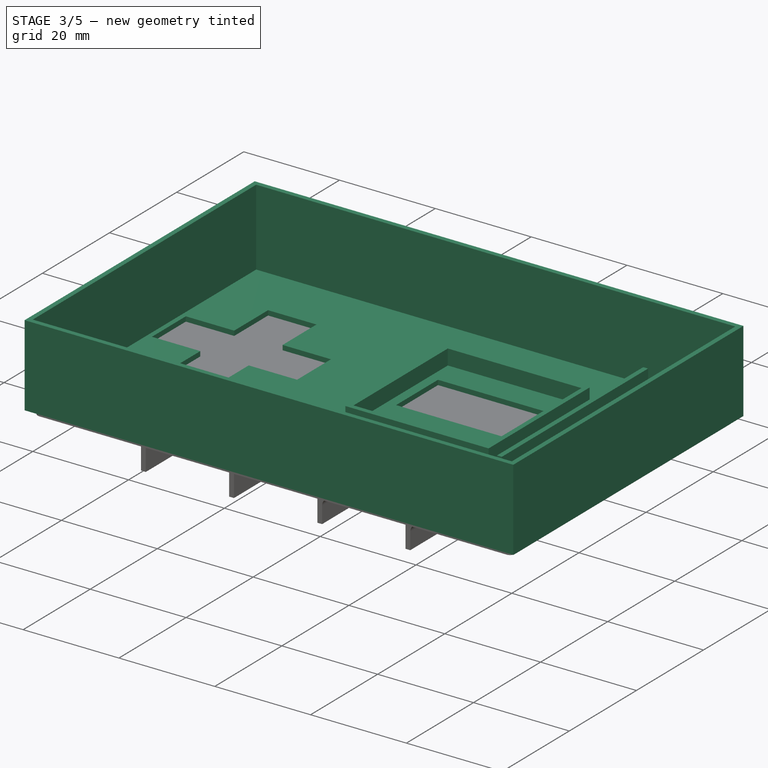
[diagram: stage 3 of 5 — iso view after this stage's code; geometry added in this stage tinted green]
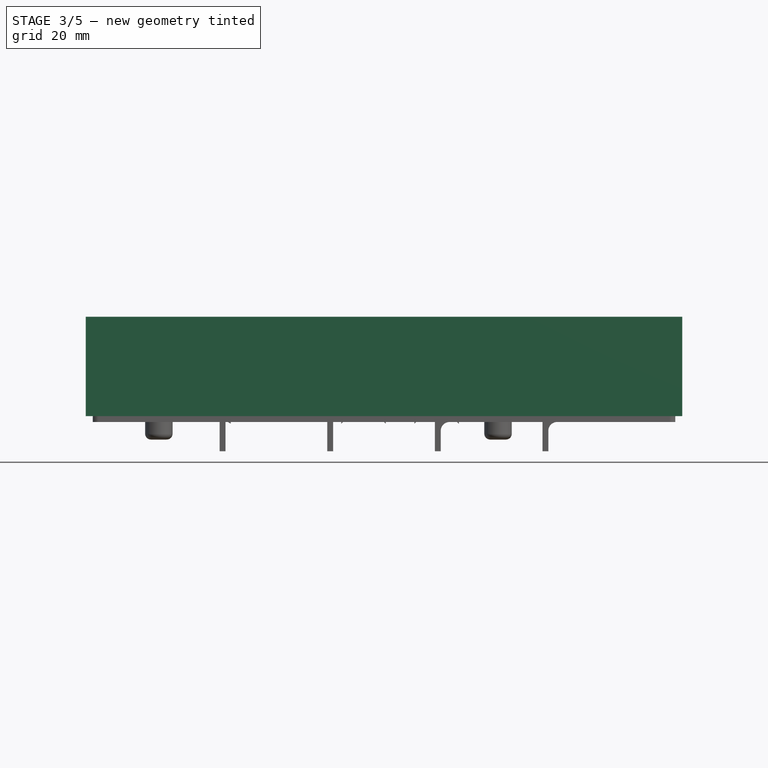
[diagram: stage 3 of 5 — front view after this stage's code; geometry added in this stage tinted green]
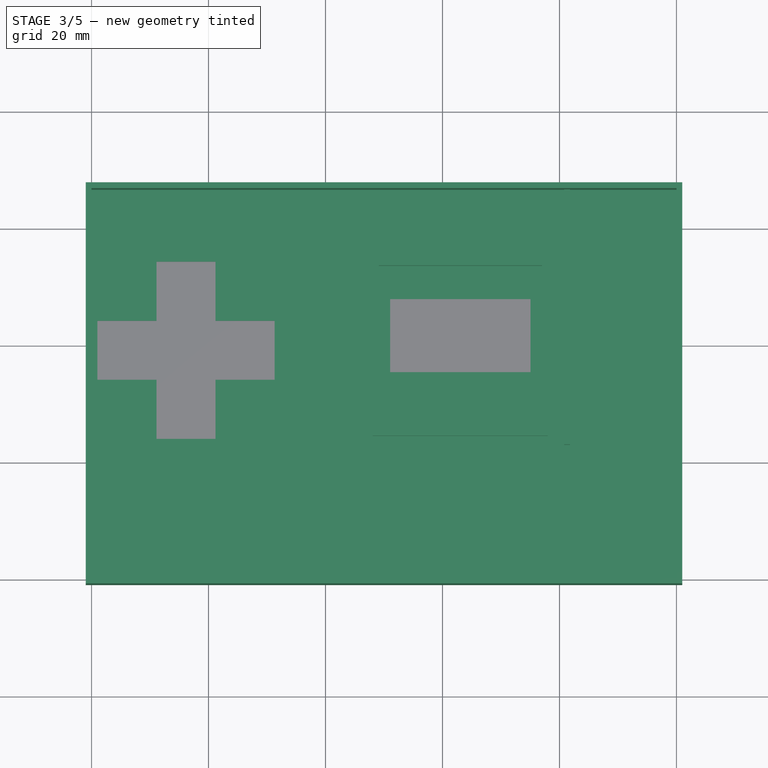
[diagram: stage 3 of 5 — top view after this stage's code; geometry added in this stage tinted green]
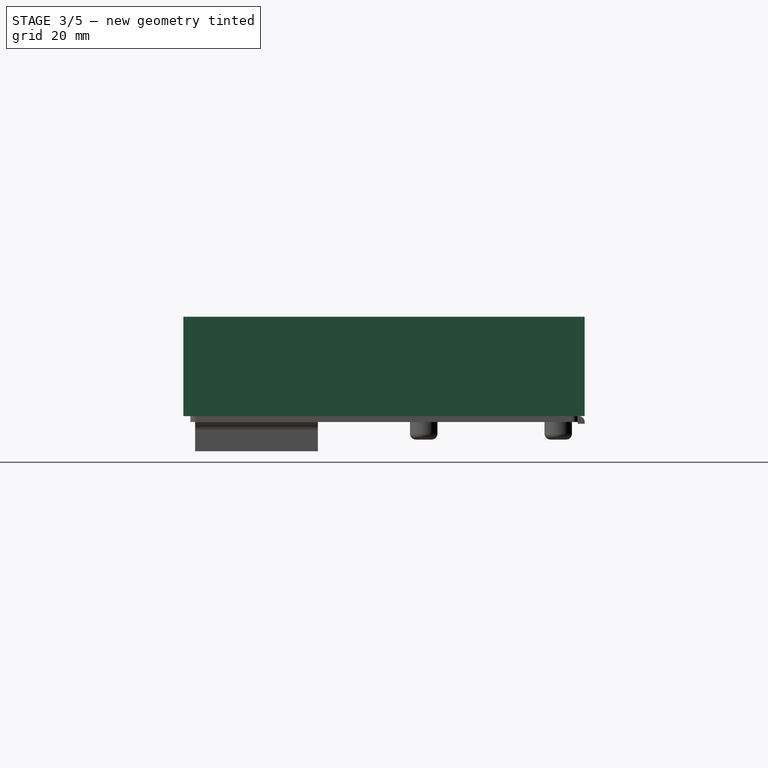
[diagram: stage 3 of 5 — right view after this stage's code; geometry added in this stage tinted green]
FEATURE [Spreadsheet::Sheet] Spreadsheet  label="v"
  cells = A1=name; B1=value; C1=details; A2=tol; B2(tol)=0.20000000000000001; A3=wt; B3(wt)=1; A4=width; B4(width)=100; A5=height; B5(height)==c.ard_height + v.tol * 2 + v.wt + c.bat_diam * 2; C5=65; A6=depth; B6(depth)=16; A7=scr_topdist; B7(scr_topdist)=12
FEATURE [Spreadsheet::Sheet] Spreadsheet001  label="c"
  cells = A1=Raspberry; D1=Screen (scr); G1=Arduino (ard); J1=Button pad (pad); M1=Bolt (b); P1=Battery (bat); D2=width; E2(scr_width)=27.5; G2=width; H2(ard_width)=17.800000000000001; J2=width; K2(pad_width)=9.6999999999999993; L2=all edges; M2=t_diam; N2(b_t_diam)=2.7999999999999998; O2=Threaded; P2=diam; Q2(bat_diam)=11; R2=Large tol; D3=height; E3(scr_height)=27.699999999999999; G3=height; H3(ard_height)=43.200000000000003; M3=l_diam; N3(b_l_diam)=3.3999999999999999; O3=Loose; P3=length; Q3(bat_length)=44; D4=h_width; E4(scr_h_width)=24; F4=screen hole; G4=depth; H4(ard_depth)=3.2000000000000002; D5=h_height; E5(scr_h_height)=12.5; D6=h_sidedist; E6(scr_h_sidedist)==(scr_width - scr_h_width) / 2; D7=h_topdist; E7(scr_h_topdist)=5.5
FEATURE [Sketcher::SketchObject] Sketch
  MapMode = 5
  Support = -> [XY_Plane]
  expr: Constraints[34] = v.height
  expr: Constraints[33] = v.width
  expr: Constraints[32] = v.wt
  sketch-geometry (12):
    g0: LineSegment [constr] StartX=0 StartY=0 StartZ=0 EndX=100 EndY=0 EndZ=0
    g1: LineSegment [constr] StartX=100 StartY=0 StartZ=0 EndX=100 EndY=66.6 EndZ=0
    g2: LineSegment [constr] StartX=100 StartY=66.6 StartZ=0 EndX=0 EndY=66.6 EndZ=0
    g3: LineSegment [constr] StartX=0 StartY=66.6 StartZ=0 EndX=0 EndY=0 EndZ=0
    g4: LineSegment StartX=-1 StartY=-1 StartZ=0 EndX=101 EndY=-1 EndZ=0
    g5: LineSegment StartX=101 StartY=-1 StartZ=0 EndX=101 EndY=67.6 EndZ=0
    g6: LineSegment StartX=101 StartY=67.6 StartZ=0 EndX=-1 EndY=67.6 EndZ=0
    g7: LineSegment StartX=-1 StartY=67.6 StartZ=0 EndX=-1 EndY=-1 EndZ=0
    g8: LineSegment [constr] StartX=0 StartY=66.6 StartZ=0 EndX=-1 EndY=66.6 EndZ=0
    g9: LineSegment [constr] StartX=100 StartY=66.6 StartZ=0 EndX=101 EndY=66.6 EndZ=0
    g10: LineSegment [constr] StartX=100 StartY=0 StartZ=0 EndX=100 EndY=-1 EndZ=0
    g11: LineSegment [constr] StartX=100 StartY=66.6 StartZ=0 EndX=100 EndY=67.6 EndZ=0
  constraints (35):
    c: Coincident(g0,g1)
    c: Coincident(g1,g2)
    c: Coincident(g2,g3)
    c: Coincident(g3,g0)
    c: Horizontal(g0)
    c: Horizontal(g2)
    c: Vertical(g1)
    c: Vertical(g3)
    c: Coincident(g0,g-1)
    c: Coincident(g4,g5)
    c: Coincident(g5,g6)
    c: Coincident(g6,g7)
    c: Coincident(g7,g4)
    c: Horizontal(g4)
    c: Horizontal(g6)
    c: Vertical(g5)
    c: Vertical(g7)
    c: Coincident(g8,g2)
    c: PointOnObject(g8,g7)
    c: Horizontal(g8)
    c: Coincident(g9,g1)
    c: PointOnObject(g9,g5)
    c: Horizontal(g9)
    c: Coincident(g10,g0)
    c: PointOnObject(g10,g4)
    c: Vertical(g10)
    c: Coincident(g11,g1)
    c: PointOnObject(g11,g6)
    c: Vertical(g11)
    c: Equal(g9,g8)
    c: Equal(g11,g10)
    c: Equal(g11,g9)
    c: DistanceY(g10,g10) = 1
    c: DistanceX(g0,g0) = 100
    c: DistanceY(g3,g3) = 66.6
FEATURE [PartDesign::Pad] Pad
  Length = 17
  Length2 = 100
  Profile = -> Sketch
  Type = 0
  expr: Length = v.depth + v.wt
FEATURE [Sketcher::SketchObject] Sketch001
  MapMode = 5
  Placement = pos=(0,0,17) rot=(0,0,1;0rad)
  Support = -> [Pad]
  expr: Constraints[10] = v.height
  expr: Constraints[9] = v.width
  sketch-geometry (4):
    g0: LineSegment StartX=0 StartY=0 StartZ=0 EndX=100 EndY=0 EndZ=0
    g1: LineSegment StartX=100 StartY=0 StartZ=0 EndX=100 EndY=66.6 EndZ=0
    g2: LineSegment StartX=100 StartY=66.6 StartZ=0 EndX=0 EndY=66.6 EndZ=0
    g3: LineSegment StartX=0 StartY=66.6 StartZ=0 EndX=0 EndY=0 EndZ=0
  constraints (11):
    c: Coincident(g0,g1)
    c: Coincident(g1,g2)
    c: Coincident(g2,g3)
    c: Coincident(g3,g0)
    c: Horizontal(g0)
    c: Horizontal(g2)
    c: Vertical(g1)
    c: Vertical(g3)
    c: Coincident(g0,g-1)
    c: DistanceX(g0,g0) = 100
    c: DistanceY(g3,g3) = 66.6
FEATURE [PartDesign::Pocket] Pocket
  BaseFeature = -> Pad
  Length = 16
  Length2 = 100
  Profile = -> Sketch001
  Type = 0
  expr: Length = v.depth
FEATURE [Sketcher::SketchObject] Sketch002
  MapMode = 5
  Placement = pos=(0,0,1) rot=(0,0,1;0rad)
  Support = -> [Pocket]
  expr: Constraints[64] = v.scr_topdist
  expr: Constraints[52] = c.scr_height + v.tol * 2
  expr: Constraints[53] = c.scr_width + v.tol * 2
  expr: Constraints[22] = c.ard_height + v.tol * 2
  expr: Constraints[9] = v.width
  expr: Constraints[34] = c.b_t_diam / 2
  expr: Constraints[21] = c.ard_width + v.tol * 2
  expr: Constraints[20] = v.wt
  expr: Constraints[10] = v.height
  sketch-geometry (23):
    g0: LineSegment [constr] StartX=0 StartY=0 StartZ=0 EndX=100 EndY=0 EndZ=0
    g1: LineSegment [constr] StartX=100 StartY=0 StartZ=0 EndX=100 EndY=66.6 EndZ=0
    g2: LineSegment [constr] StartX=100 StartY=66.6 StartZ=0 EndX=0 EndY=66.6 EndZ=0
    g3: LineSegment [constr] StartX=0 StartY=66.6 StartZ=0 EndX=0 EndY=0 EndZ=0
    g4: LineSegment StartX=81.8 StartY=66.6 StartZ=0 EndX=80.8 EndY=66.6 EndZ=0
    g5: LineSegment StartX=80.8 StartY=66.6 StartZ=0 EndX=80.8 EndY=23 EndZ=0
    g6: LineSegment StartX=80.8 StartY=23 StartZ=0 EndX=81.8 EndY=23 EndZ=0
    g7: LineSegment StartX=81.8 StartY=23 StartZ=0 EndX=81.8 EndY=66.6 EndZ=0
    g8: Circle [constr] CenterX=79.4 CenterY=63.063 CenterZ=0 NormalX=0 NormalY=0 NormalZ=1 AngleXU=0 Radius=1.4
    g9: LineSegment StartX=48.1 StartY=54.6 StartZ=0 EndX=48.1 EndY=24.5 EndZ=0
    g10: LineSegment StartX=48.1 StartY=24.5 StartZ=0 EndX=78 EndY=24.5 EndZ=0
    g11: LineSegment StartX=78 StartY=24.5 StartZ=0 EndX=78 EndY=54.6 EndZ=0
    g12: GeomPoint X=80.8 Y=63.063 Z=0
    g13: GeomPoint X=78 Y=63.063 Z=0
    g14: LineSegment StartX=49.1 StartY=53.6 StartZ=0 EndX=49.1 EndY=25.5 EndZ=0
    g15: LineSegment StartX=49.1 StartY=25.5 StartZ=0 EndX=77 EndY=25.5 EndZ=0
    g16: LineSegment StartX=77 StartY=25.5 StartZ=0 EndX=77 EndY=53.6 EndZ=0
    g17: LineSegment [constr] StartX=49.1 StartY=25.5 StartZ=0 EndX=48.1 EndY=25.5 EndZ=0
    g18: LineSegment [constr] StartX=77 StartY=25.5 StartZ=0 EndX=78 EndY=25.5 EndZ=0
    g19: LineSegment [constr] StartX=77 StartY=25.5 StartZ=0 EndX=77 EndY=24.5 EndZ=0
    g20: LineSegment StartX=48.1 StartY=54.6 StartZ=0 EndX=78 EndY=54.6 EndZ=0
    g21: LineSegment StartX=49.1 StartY=53.6 StartZ=0 EndX=77 EndY=53.6 EndZ=0
    g22: LineSegment [constr] StartX=77 StartY=53.6 StartZ=0 EndX=77 EndY=54.6 EndZ=0
  constraints (65):
    c: Coincident(g0,g1)
    c: Coincident(g1,g2)
    c: Coincident(g2,g3)
    c: Coincident(g3,g0)
    c: Horizontal(g0)
    c: Horizontal(g2)
    c: Vertical(g1)
    c: Vertical(g3)
    c: Coincident(g0,g-1)
    c: DistanceX(g0,g0) = 100
    c: DistanceY(g3,g3) = 66.6
    c: Coincident(g4,g5)
    c: Coincident(g5,g6)
    c: Coincident(g6,g7)
    c: Coincident(g7,g4)
    c: Horizontal(g4)
    c: Horizontal(g6)
    c: Vertical(g5)
    c: Vertical(g7)
    c: PointOnObject(g4,g2)
    c: DistanceX(g4,g4) = 1
    c: DistanceX(g4,g1) = 18.2
    c: DistanceY(g7,g7) = 43.6
    c: Coincident(g9,g10)
    c: Coincident(g10,g11)
    c: Horizontal(g10)
    c: Vertical(g9)
    c: Vertical(g11)
    c: PointOnObject(g12,g8)
    c: PointOnObject(g13,g8)
    c: PointOnObject(g12,g5)
    c: PointOnObject(g13,g11)
    c: Tangent(g11,g8)
    c: Tangent(g5,g8)
    c: Radius(g8) = 1.4
    c: Vertical(g14)
    c: Coincident(g14,g15)
    c: Horizontal(g15)
    c: Coincident(g15,g16)
    c: Vertical(g16)
    c: Coincident(g17,g14)
    c: PointOnObject(g17,g9)
    c: Horizontal(g17)
    c: Coincident(g18,g15)
    c: PointOnObject(g18,g11)
    c: Horizontal(g18)
    c: Coincident(g19,g15)
    c: PointOnObject(g19,g10)
    c: Vertical(g19)
    c: Equal(g19,g18)
    c: Equal(g17,g18)
    c: Equal(g18,g6)
    c: DistanceY(g14,g14) = 28.1
    c: DistanceX(g15,g15) = 27.9
    c: Coincident(g20,g9)
    c: Coincident(g20,g11)
    c: Horizontal(g20)
    c: Coincident(g21,g14)
    c: Coincident(g21,g16)
    c: Horizontal(g21)
    c: Coincident(g22,g16)
    c: PointOnObject(g22,g20)
    c: Vertical(g22)
    c: Equal(g22,g19)
    c: Distance(g9,g2) = 12
FEATURE [PartDesign::Pad] Pad001
  BaseFeature = -> Pocket
  Length = 3.2
  Length2 = 100
  Profile = -> Sketch002
  Type = 0
  expr: Length = c.ard_depth
FEATURE [Sketcher::SketchObject] Sketch003
  MapMode = 5
  Placement = pos=(0,0,1) rot=(0,0,1;0rad)
  Support = -> [Pocket]
  expr: Constraints[65] = v.height - c.ard_height - 2 * v.tol + v.wt
  expr: Constraints[64] = c.pad_width + 2 * v.tol
  expr: Constraints[66] = v.wt
  expr: Constraints[21] = v.scr_topdist + v.wt + v.tol + c.scr_h_topdist
  expr: Constraints[20] = c.scr_h_height
  expr: Constraints[19] = c.scr_h_width
  expr: Constraints[10] = v.height
  expr: Constraints[22] = c.ard_width + c.b_t_diam + 2 * v.wt + 3 * v.tol + c.scr_h_sidedist
  expr: Constraints[9] = v.width
  sketch-geometry (24):
    g0: LineSegment [constr] StartX=0 StartY=0 StartZ=0 EndX=100 EndY=0 EndZ=0
    g1: LineSegment [constr] StartX=100 StartY=0 StartZ=0 EndX=100 EndY=66.6 EndZ=0
    g2: LineSegment [constr] StartX=100 StartY=66.6 StartZ=0 EndX=0 EndY=66.6 EndZ=0
    g3: LineSegment [constr] StartX=0 StartY=66.6 StartZ=0 EndX=0 EndY=0 EndZ=0
    g4: LineSegment StartX=51.05 StartY=47.9 StartZ=0 EndX=75.05 EndY=47.9 EndZ=0
    g5: LineSegment StartX=75.05 StartY=47.9 StartZ=0 EndX=75.05 EndY=35.4 EndZ=0
    g6: LineSegment StartX=75.05 StartY=35.4 StartZ=0 EndX=51.05 EndY=35.4 EndZ=0
    g7: LineSegment StartX=51.05 StartY=35.4 StartZ=0 EndX=51.05 EndY=47.9 EndZ=0
    g8: LineSegment StartX=11.1 StartY=44.2 StartZ=0 EndX=11.1 EndY=54.3 EndZ=0
    g9: LineSegment StartX=11.1 StartY=54.3 StartZ=0 EndX=21.2 EndY=54.3 EndZ=0
    g10: LineSegment StartX=21.2 StartY=54.3 StartZ=0 EndX=21.2 EndY=44.2 EndZ=0
    g11: LineSegment StartX=21.2 StartY=44.2 StartZ=0 EndX=31.3 EndY=44.2 EndZ=0
    g12: LineSegment StartX=31.3 StartY=44.2 StartZ=0 EndX=31.3 EndY=34.1 EndZ=0
    g13: LineSegment StartX=31.3 StartY=34.1 StartZ=0 EndX=21.2 EndY=34.1 EndZ=0
    g14: LineSegment StartX=21.2 StartY=34.1 StartZ=0 EndX=21.2 EndY=24 EndZ=0
    g15: LineSegment StartX=21.2 StartY=24 StartZ=0 EndX=11.1 EndY=24 EndZ=0
    g16: LineSegment StartX=11.1 StartY=24 StartZ=0 EndX=11.1 EndY=34.1 EndZ=0
    g17: LineSegment StartX=11.1 StartY=34.1 StartZ=0 EndX=1 EndY=34.1 EndZ=0
    g18: LineSegment StartX=1 StartY=34.1 StartZ=0 EndX=1 EndY=44.2 EndZ=0
    g19: LineSegment StartX=1 StartY=44.2 StartZ=0 EndX=11.1 EndY=44.2 EndZ=0
    g20: LineSegment [constr] StartX=11.1 StartY=44.2 StartZ=0 EndX=21.2 EndY=44.2 EndZ=0
    g21: LineSegment [constr] StartX=21.2 StartY=44.2 StartZ=0 EndX=21.2 EndY=34.1 EndZ=0
    g22: LineSegment [constr] StartX=21.2 StartY=34.1 StartZ=0 EndX=11.1 EndY=34.1 EndZ=0
    g23: LineSegment [constr] StartX=11.1 StartY=34.1 StartZ=0 EndX=11.1 EndY=44.2 EndZ=0
  constraints (67):
    c: Coincident(g0,g1)
    c: Coincident(g1,g2)
    c: Coincident(g2,g3)
    c: Coincident(g3,g0)
    c: Horizontal(g0)
    c: Horizontal(g2)
    c: Vertical(g1)
    c: Vertical(g3)
    c: Coincident(g0,g-1)
    c: DistanceX(g0,g0) = 100
    c: DistanceY(g3,g3) = 66.6
    c: Coincident(g4,g5)
    c: Coincident(g5,g6)
    c: Coincident(g6,g7)
    c: Coincident(g7,g4)
    c: Horizontal(g4)
    c: Horizontal(g6)
    c: Vertical(g5)
    c: Vertical(g7)
    c: DistanceX(g6,g6) = 24
    c: DistanceY(g7,g7) = 12.5
    c: Distance(g4,g2) = 18.7
    c: Distance(g4,g1) = 24.95
    c: Vertical(g8)
    c: Coincident(g8,g9)
    c: Horizontal(g9)
    c: Coincident(g9,g10)
    c: Vertical(g10)
    c: Coincident(g10,g11)
    c: Horizontal(g11)
    c: Coincident(g11,g12)
    c: Vertical(g12)
    c: Coincident(g12,g13)
    c: Horizontal(g13)
    c: Coincident(g13,g14)
    c: Vertical(g14)
    c: Coincident(g14,g15)
    c: Horizontal(g15)
    c: Coincident(g15,g16)
    c: Vertical(g16)
    c: Coincident(g16,g17)
    c: Horizontal(g17)
    c: Coincident(g17,g18)
    c: Vertical(g18)
    c: Coincident(g18,g19)
    c: Coincident(g19,g8)
    c: Horizontal(g19)
    c: Coincident(g20,g21)
    c: Coincident(g21,g22)
    c: Coincident(g22,g23)
    c: Coincident(g23,g20)
    c: Horizontal(g20)
    c: Horizontal(g22)
    c: Vertical(g21)
    c: Vertical(g23)
    c: Coincident(g20,g8)
    c: Coincident(g21,g13)
    c: Coincident(g10,g20)
    c: Coincident(g22,g16)
    c: Equal(g20,g23)
    c: Equal(g8,g16)
    c: Equal(g19,g11)
    c: Equal(g8,g19)
    c: Equal(g8,g20)
    c: DistanceX(g20,g20) = 10.1
    c: Distance(g15,g0) = 24
    c: Distance(g18,g3) = 1
FEATURE [PartDesign::Pocket] Pocket001
  BaseFeature = -> Pad001
  Length = 5
  Length2 = 100
  Profile = -> Sketch003
  Type = 1
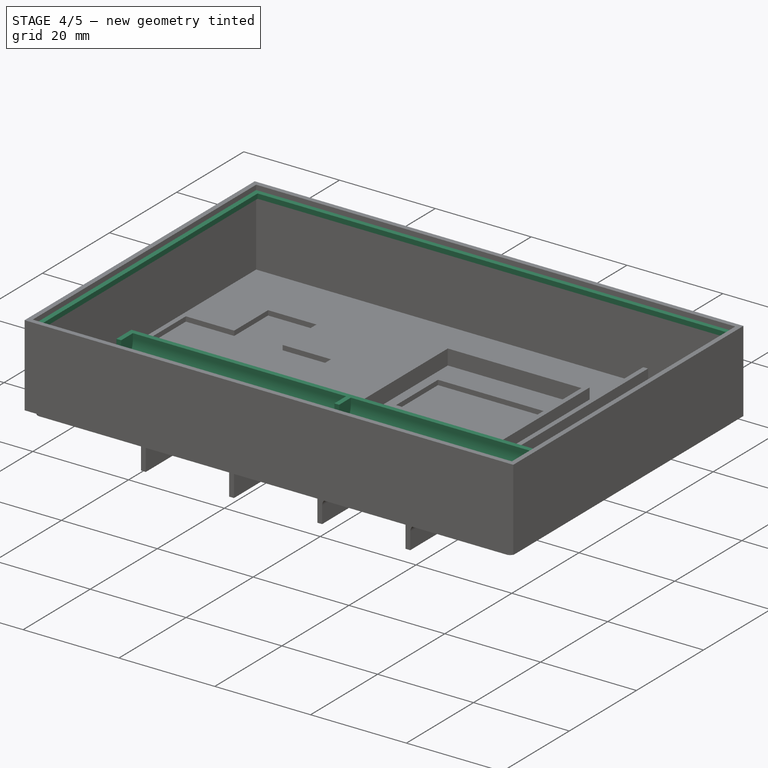
[diagram: stage 4 of 5 — iso view after this stage's code; geometry added in this stage tinted green]
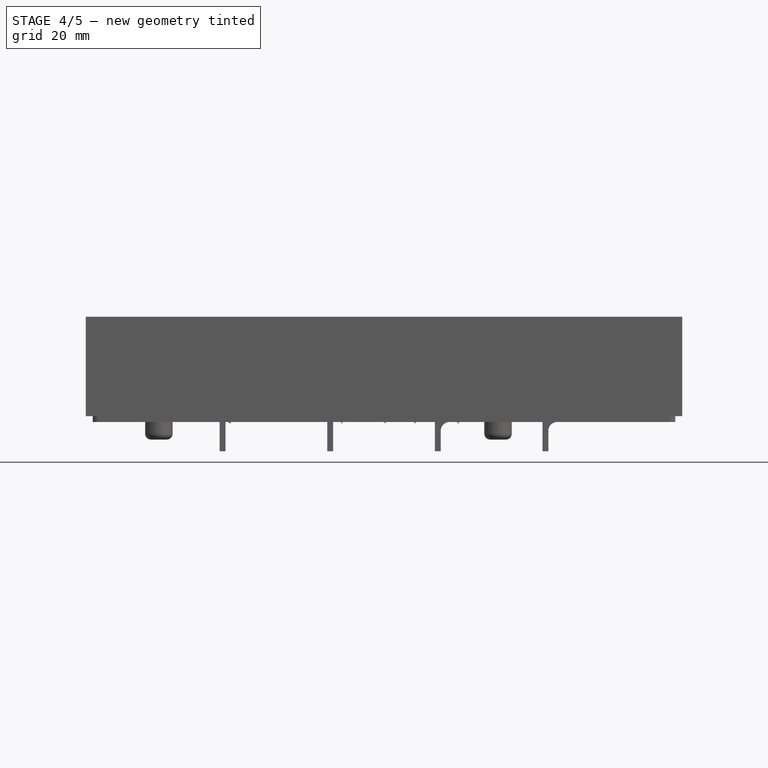
[diagram: stage 4 of 5 — front view after this stage's code; geometry added in this stage tinted green]
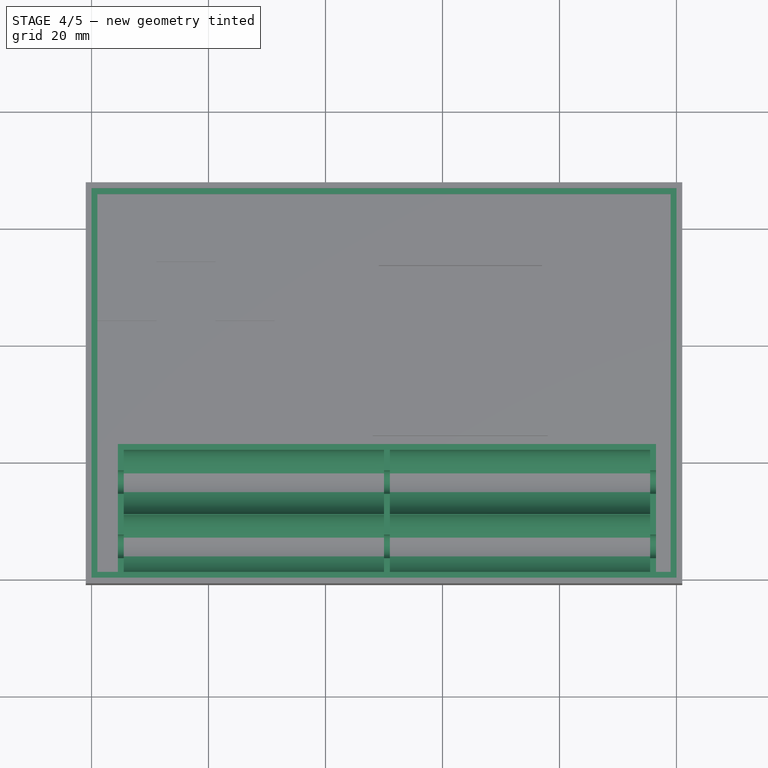
[diagram: stage 4 of 5 — top view after this stage's code; geometry added in this stage tinted green]
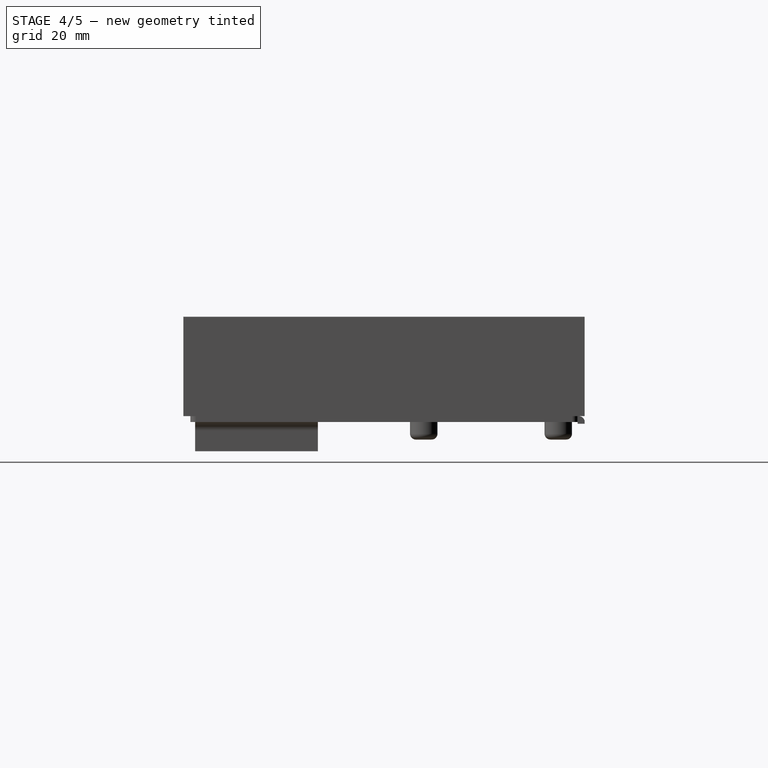
[diagram: stage 4 of 5 — right view after this stage's code; geometry added in this stage tinted green]
FEATURE [PartDesign::Plane] DatumPlane
  AttachmentOffset = pos=(0,0,4.5) rot=(0,0,1;0rad)
  MapMode = 5
  Placement = pos=(4.5,0,0) rot=(0.57735,0.57735,0.57735;2.0944rad)
  Support = -> [Pocket001]
  expr: AttachmentOffset.Base.z = (v.width - c.bat_length * 2 - 3 * v.wt) / 2
FEATURE [Sketcher::SketchObject] Sketch004
  MapMode = 5
  Placement = pos=(4.5,0,0) rot=(0.57735,0.57735,0.57735;2.0944rad)
  Support = -> [DatumPlane]
  expr: Constraints[29] = v.wt
  expr: Constraints[26] = c.bat_diam / 2
  expr: Constraints[18] = v.tol
  expr: Constraints[0] = c.bat_diam / 2
  sketch-geometry (11):
    g0: ArcOfCircle CenterX=5.5 CenterY=6.5 CenterZ=0 NormalX=0 NormalY=0 NormalZ=1 AngleXU=0 Radius=5.5 StartAngle=3.14159 EndAngle=6.09392
    g1: ArcOfCircle CenterX=16.5 CenterY=6.5 CenterZ=0 NormalX=0 NormalY=0 NormalZ=1 AngleXU=0 Radius=5.5 StartAngle=3.33086 EndAngle=6.28319
    g2: LineSegment [constr] StartX=0 StartY=6.5 StartZ=0 EndX=22 EndY=6.5 EndZ=0
    g3: LineSegment StartX=22 StartY=6.5 StartZ=0 EndX=22 EndY=7.5 EndZ=0
    g4: LineSegment StartX=22 StartY=7.5 StartZ=0 EndX=23 EndY=7.5 EndZ=0
    g5: LineSegment StartX=23 StartY=7.5 StartZ=0 EndX=23 EndY=0.2 EndZ=0
    g6: LineSegment StartX=23 StartY=0.2 StartZ=0 EndX=0 EndY=0.2 EndZ=0
    g7: LineSegment StartX=0 StartY=0.2 StartZ=0 EndX=0 EndY=6.5 EndZ=0
    g8: GeomPoint X=5.5 Y=1 Z=0
    g9: LineSegment [constr] StartX=5.5 StartY=1 StartZ=0 EndX=5.5 EndY=0 EndZ=0
    g10: ArcOfCircle CenterX=11 CenterY=5.44643 CenterZ=0 NormalX=0 NormalY=0 NormalZ=1 AngleXU=0 Radius=0.1 StartAngle=0.189265 EndAngle=2.95233
  constraints (31):
    c: Radius(g0) = 5.5
    c: Equal(g0,g1)
    c: Coincident(g2,g0)
    c: Horizontal(g2)
    c: Coincident(g1,g2)
    c: PointOnObject(g0,g2)
    c: PointOnObject(g1,g2)
    c: Tangent(g1,g3) = -1.5708
    c: Coincident(g3,g4)
    c: Horizontal(g4)
    c: Coincident(g4,g5)
    c: Vertical(g5)
    c: Coincident(g5,g6)
    c: PointOnObject(g6,g-2)
    c: Horizontal(g6)
    c: Coincident(g7,g6)
    c: Coincident(g7,g0)
    c: Vertical(g7)
    c: DistanceY(g-1,g6) = 0.2
    c: PointOnObject(g8,g0)
    c: Coincident(g9,g8)
    c: PointOnObject(g9,g-1)
    c: Vertical(g9)
    c: Perpendicular(g0,g9)
    c: Tangent(g10,g0) = 1.5708
    c: Tangent(g10,g1) = 1.5708
    c: DistanceX(g0,g10) = 5.5
    c: Radius(g10) = 0.1
    c: Equal(g9,g4)
    c: DistanceX(g4,g4) = 1
    c: DistanceY(g3,g3) = 1
FEATURE [PartDesign::Pad] Pad002
  BaseFeature = -> Pocket001
  Length = 91
  Length2 = 100
  Profile = -> Sketch004
  Type = 0
  expr: Length = c.bat_length * 2 + v.wt * 3
FEATURE [Sketcher::SketchObject] Sketch005
  MapMode = 5
  Placement = pos=(4.5,0,0) rot=(0.57735,0.57735,0.57735;2.0944rad)
  Support = -> [DatumPlane]
  expr: Constraints[40] = v.tol
  expr: Constraints[37] = c.bat_diam / 2
  expr: Constraints[36] = c.bat_diam / 2
  expr: Constraints[29] = v.wt
  expr: Constraints[39] = c.bat_diam / 2 + v.wt + 1
  expr: Constraints[6] = c.bat_diam * 2 + v.wt
  sketch-geometry (15):
    g0: LineSegment StartX=0 StartY=0.2 StartZ=0 EndX=0 EndY=7.5 EndZ=0
    g1: LineSegment StartX=0 StartY=0.2 StartZ=0 EndX=23 EndY=0.2 EndZ=0
    g2: LineSegment StartX=23 StartY=0.2 StartZ=0 EndX=23 EndY=7.5 EndZ=0
    g3: LineSegment [constr] StartX=3.5 StartY=7.5 StartZ=0 EndX=7.5 EndY=7.5 EndZ=0
    g4: LineSegment [constr] StartX=14.5 StartY=7.5 StartZ=0 EndX=18.5 EndY=7.5 EndZ=0
    g5: LineSegment StartX=3.5 StartY=7.5 StartZ=0 EndX=3.5 EndY=5.5 EndZ=0
    g6: LineSegment StartX=7.5 StartY=7.5 StartZ=0 EndX=7.5 EndY=5.5 EndZ=0
    g7: LineSegment StartX=14.5 StartY=7.5 StartZ=0 EndX=14.5 EndY=5.5 EndZ=0
    g8: LineSegment StartX=18.5 StartY=7.5 StartZ=0 EndX=18.5 EndY=5.5 EndZ=0
    g9: ArcOfCircle CenterX=5.5 CenterY=5.5 CenterZ=0 NormalX=0 NormalY=0 NormalZ=1 AngleXU=0 Radius=2 StartAngle=3.14159 EndAngle=6.28319
    g10: ArcOfCircle CenterX=16.5 CenterY=5.5 CenterZ=0 NormalX=0 NormalY=0 NormalZ=1 AngleXU=0 Radius=2 StartAngle=3.14159 EndAngle=6.28319
    g11: LineSegment StartX=3.5 StartY=7.5 StartZ=0 EndX=0 EndY=7.5 EndZ=0
    g12: LineSegment StartX=18.5 StartY=7.5 StartZ=0 EndX=22 EndY=7.5 EndZ=0
    g13: LineSegment StartX=22 StartY=7.5 StartZ=0 EndX=23 EndY=7.5 EndZ=0
    g14: LineSegment StartX=7.5 StartY=7.5 StartZ=0 EndX=14.5 EndY=7.5 EndZ=0
  constraints (41):
    c: PointOnObject(g0,g-2)
    c: Vertical(g0)
    c: Coincident(g1,g0)
    c: Horizontal(g1)
    c: Coincident(g2,g1)
    c: Vertical(g2)
    c: DistanceX(g1,g1) = 23
    c: Horizontal(g3)
    c: Horizontal(g4)
    c: Vertical(g5)
    c: Vertical(g6)
    c: Vertical(g7)
    c: Vertical(g8)
    c: Equal(g3,g4)
    c: Tangent(g9,g5) = -1.5708
    c: Tangent(g9,g6) = 1.5708
    c: Tangent(g10,g7) = -1.5708
    c: Tangent(g10,g8) = 1.5708
    c: Equal(g7,g6)
    c: Coincident(g3,g5)
    c: Coincident(g11,g3)
    c: Coincident(g11,g0)
    c: Horizontal(g11)
    c: Coincident(g4,g12)
    c: Horizontal(g12)
    c: Coincident(g12,g13)
    c: Coincident(g13,g2)
    c: Horizontal(g13)
    c: Equal(g11,g12)
    c: DistanceX(g13,g13) = 1
    c: Coincident(g3,g6)
    c: Coincident(g4,g7)
    c: Coincident(g8,g4)
    c: Coincident(g14,g3)
    c: Coincident(g14,g4)
    c: Horizontal(g14)
    c: DistanceX(g-2,g9) = 5.5
    c: DistanceY(g-1,g9) = 5.5
    c: Radius(g9) = 2
    c: DistanceY(g-1,g2) = 7.5
    c: DistanceY(g-1,g0) = 0.2
FEATURE [PartDesign::Pad] Pad003
  BaseFeature = -> Pad002
  Length = 1
  Length2 = 100
  Profile = -> Sketch005
  Type = 0
  expr: Length = v.wt
FEATURE [PartDesign::LinearPattern] LinearPattern
  BaseFeature = -> Pad003
  Direction = -> Sketch005 [N_Axis]
  Length = 91
  Occurrences = 3
  Originals = -> [Pad003]
  expr: Length = c.bat_length * 2 + v.wt * 3
FEATURE [PartDesign::Plane] DatumPlane001
  AttachmentOffset = pos=(0,0,16) rot=(0,0,1;0rad)
  MapMode = 2
  Placement = pos=(0,0,16) rot=(0,0,1;0rad)
  Support = -> [XY_Plane]
  expr: AttachmentOffset.Base.z = v.depth
FEATURE [Sketcher::SketchObject] Sketch012
  MapMode = 5
  Placement = pos=(0,0,16) rot=(0,0,1;0rad)
  Support = -> [DatumPlane001]
  expr: Constraints[33] = v.wt
  expr: Constraints[10] = v.height
  expr: Constraints[9] = v.width
  sketch-geometry (12):
    g0: LineSegment StartX=0 StartY=0 StartZ=0 EndX=100 EndY=0 EndZ=0
    g1: LineSegment StartX=100 StartY=0 StartZ=0 EndX=100 EndY=66.6 EndZ=0
    g2: LineSegment StartX=100 StartY=66.6 StartZ=0 EndX=0 EndY=66.6 EndZ=0
    g3: LineSegment StartX=0 StartY=66.6 StartZ=0 EndX=0 EndY=0 EndZ=0
    g4: LineSegment StartX=1 StartY=1 StartZ=0 EndX=99 EndY=1 EndZ=0
    g5: LineSegment StartX=99 StartY=1 StartZ=0 EndX=99 EndY=65.6 EndZ=0
    g6: LineSegment StartX=99 StartY=65.6 StartZ=0 EndX=1 EndY=65.6 EndZ=0
    g7: LineSegment StartX=1 StartY=65.6 StartZ=0 EndX=1 EndY=1 EndZ=0
    g8: LineSegment [constr] StartX=0 StartY=1 StartZ=0 EndX=1 EndY=1 EndZ=0
    g9: LineSegment [constr] StartX=100 StartY=1 StartZ=0 EndX=99 EndY=1 EndZ=0
    g10: LineSegment [constr] StartX=1 StartY=1 StartZ=0 EndX=1 EndY=0 EndZ=0
    g11: LineSegment [constr] StartX=1 StartY=66.6 StartZ=0 EndX=1 EndY=65.6 EndZ=0
  constraints (35):
    c: Coincident(g0,g1)
    c: Coincident(g1,g2)
    c: Coincident(g2,g3)
    c: Coincident(g3,g0)
    c: Horizontal(g0)
    c: Horizontal(g2)
    c: Vertical(g1)
    c: Vertical(g3)
    c: Coincident(g0,g-1)
    c: DistanceX(g2,g2) = 100
    c: DistanceY(g1,g1) = 66.6
    c: Coincident(g4,g5)
    c: Coincident(g5,g6)
    c: Coincident(g6,g7)
    c: Coincident(g7,g4)
    c: Horizontal(g4)
    c: Horizontal(g6)
    c: Vertical(g5)
    c: Vertical(g7)
    c: PointOnObject(g8,g3)
    c: Coincident(g8,g4)
    c: Horizontal(g8)
    c: PointOnObject(g9,g1)
    c: Coincident(g9,g4)
    c: Horizontal(g9)
    c: Coincident(g10,g4)
    c: PointOnObject(g10,g0)
    c: Vertical(g10)
    c: PointOnObject(g11,g2)
    c: Coincident(g11,g6)
    c: Vertical(g11)
    c: Equal(g8,g9)
    c: Equal(g10,g11)
    c: DistanceX(g8,g8) = 1
    c: Equal(g8,g10)
FEATURE [PartDesign::Pad] Pad008
  BaseFeature = -> LinearPattern
  Length = 1
  Length2 = 100
  Profile = -> Sketch012
  Reversed = true
  Type = 0
  expr: Length = v.wt
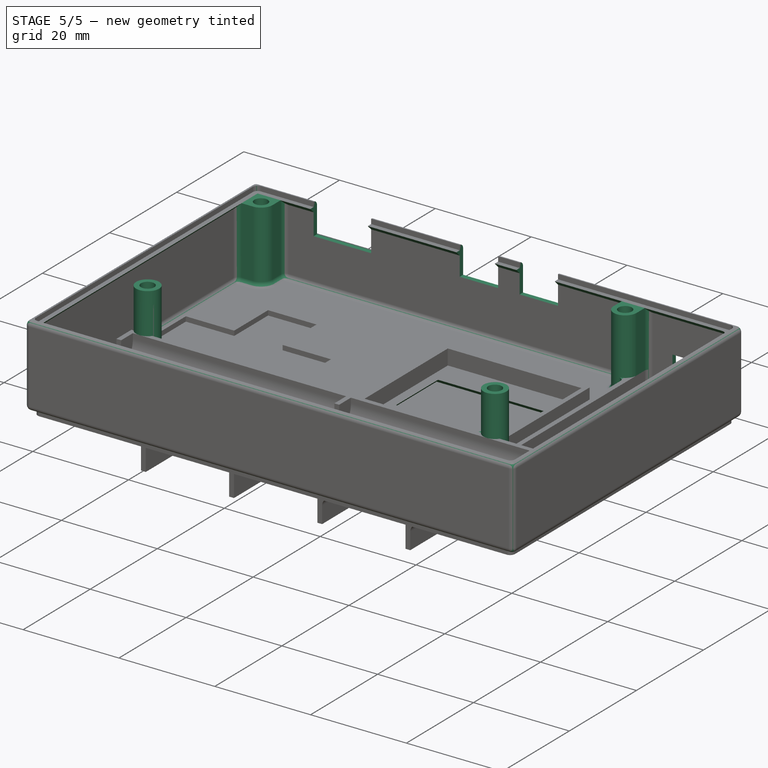
[diagram: stage 5 of 5 — iso view after this stage's code; geometry added in this stage tinted green]
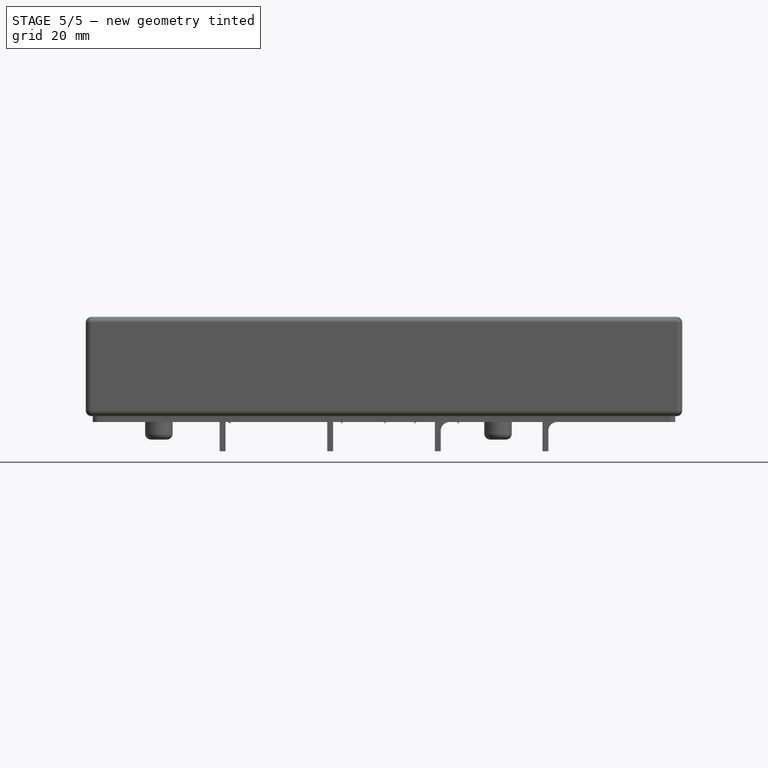
[diagram: stage 5 of 5 — front view after this stage's code; geometry added in this stage tinted green]
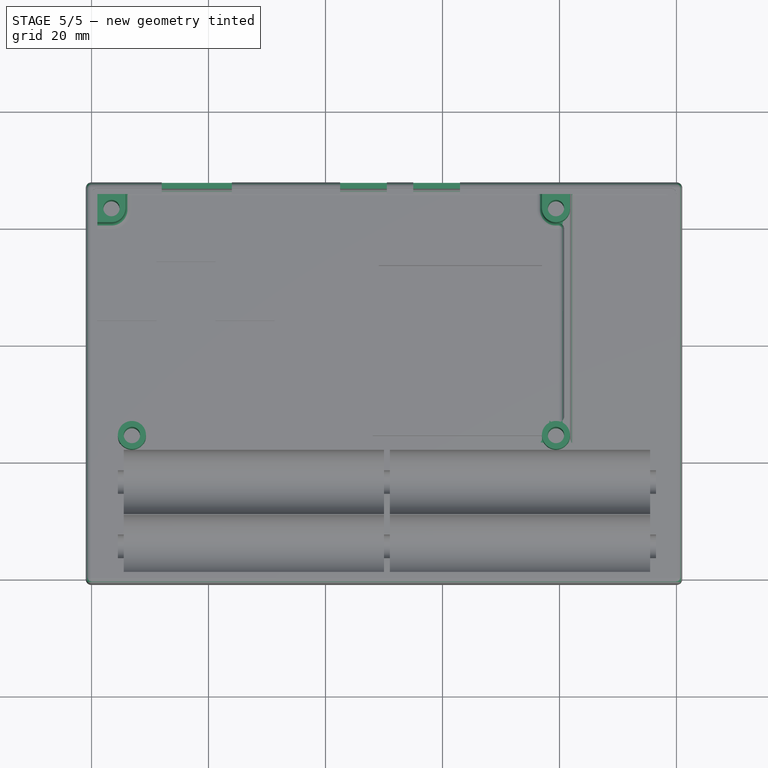
[diagram: stage 5 of 5 — top view after this stage's code; geometry added in this stage tinted green]
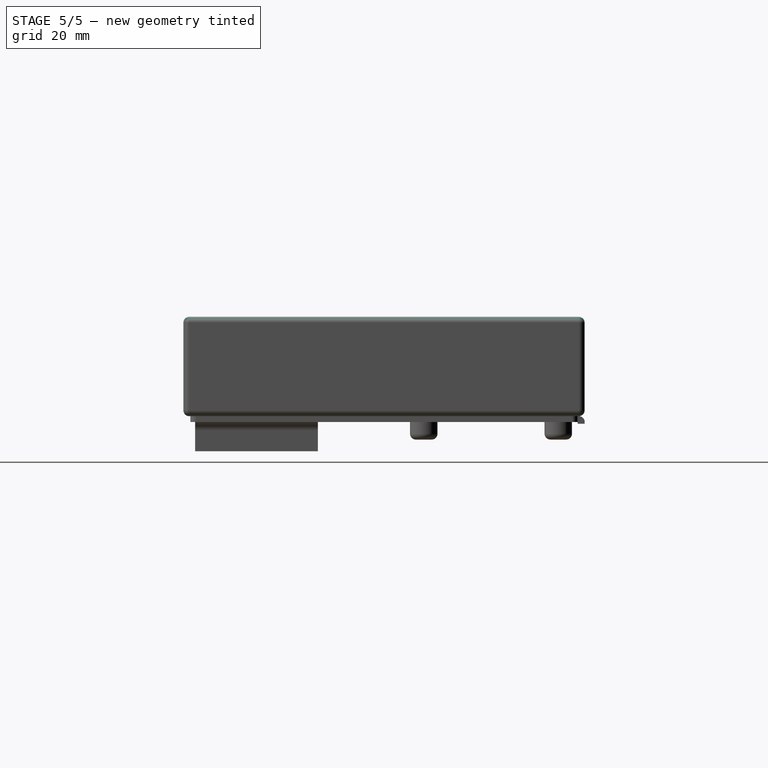
[diagram: stage 5 of 5 — right view after this stage's code; geometry added in this stage tinted green]
FEATURE [PartDesign::Pad] Pad004
  BaseFeature = -> Pad008
  Length = 15
  Length2 = 100
  Profile = -> Sketch007
  Type = 0
  expr: Length = v.depth - v.wt
FEATURE [PartDesign::Pocket] Pocket002
  BaseFeature = -> Pad004
  Length = 5
  Length2 = 2
  Midplane = true
  Profile = -> Sketch006
  Type = 4
  expr: Length2 = 2
FEATURE [PartDesign::Fillet] Fillet
  Base = -> Pocket002 [Edge311,Edge222,Edge102,Edge8,Edge94,Edge5,Edge288,Edge307,Edge97,Edge1,Edge275,Edge309,Edge100,Edge2,Edge223,Edge200,Edge228,Edge232,Edge235,Edge238,Edge335,Edge199,Edge290,Edge185,Edge183,Edge163,Edge181,Edge224,Edge319,Edge276,Edge180,Edge164,Edge325,Edge11,Edge9,Edge3,Edge6,Edge4,Edge7,Edge10,+4 more]
  BaseFeature = -> Pocket002
  Radius = 0.9999
FEATURE [PartDesign::Chamfer] Chamfer
  Base = -> Fillet [Edge385,Edge238,Edge372,Edge373,Edge219,Edge42,Edge41,Edge40,Edge39]
  BaseFeature = -> Fillet
  Size = 0.999
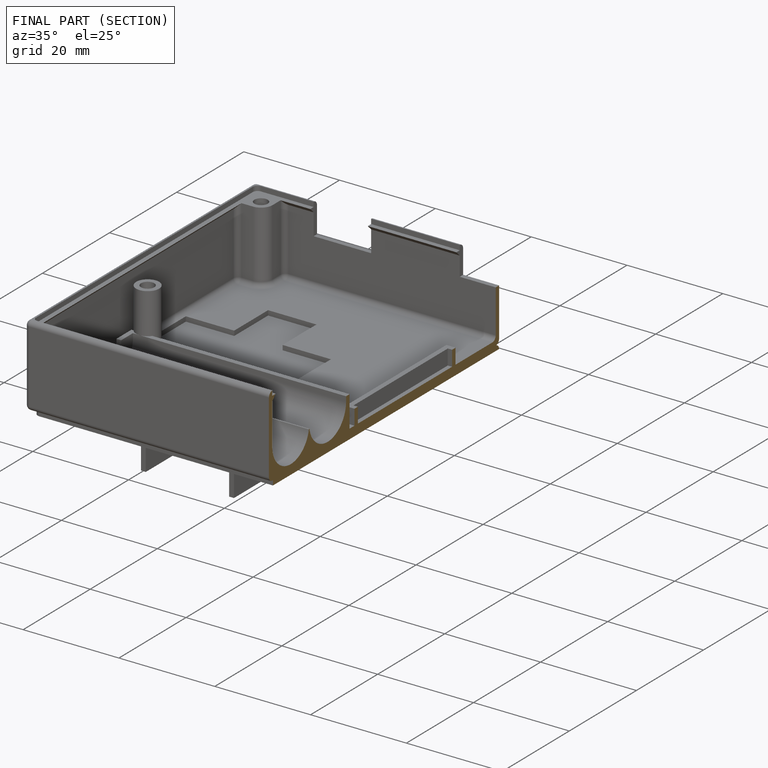
[diagram: finished part — half-section view (interior)]
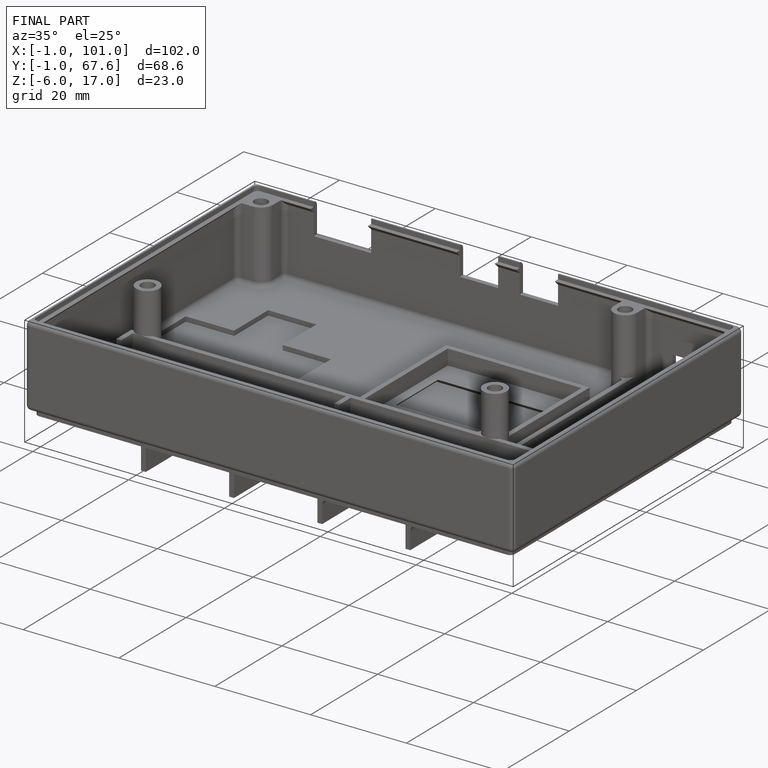
[diagram: finished part — iso view with bounding-box wireframe]
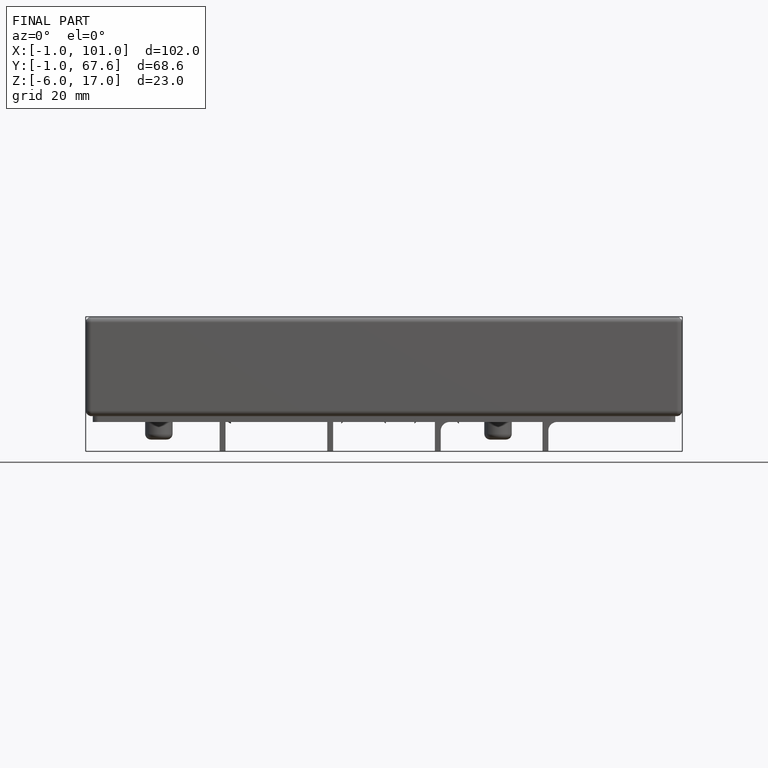
[diagram: finished part — front view with bounding-box wireframe]
